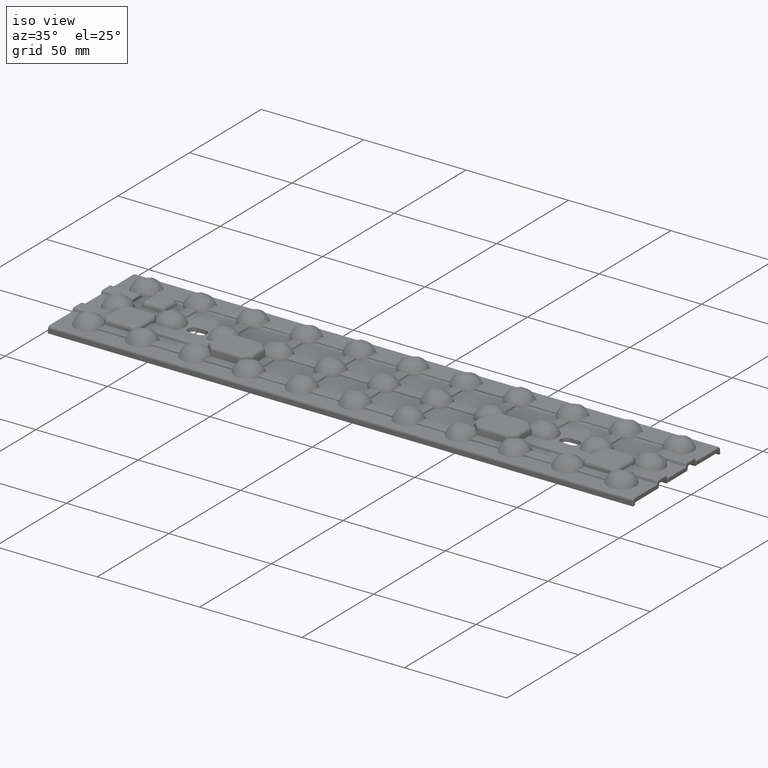
[diagram: clean part render]
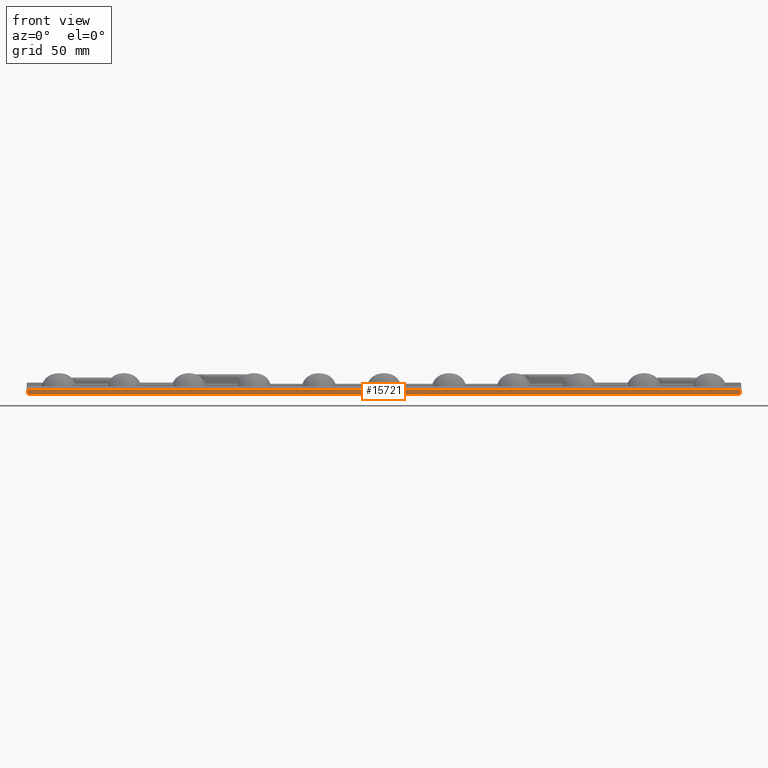
[diagram: tour spotlight — one face highlighted and labeled with its STEP entity id]
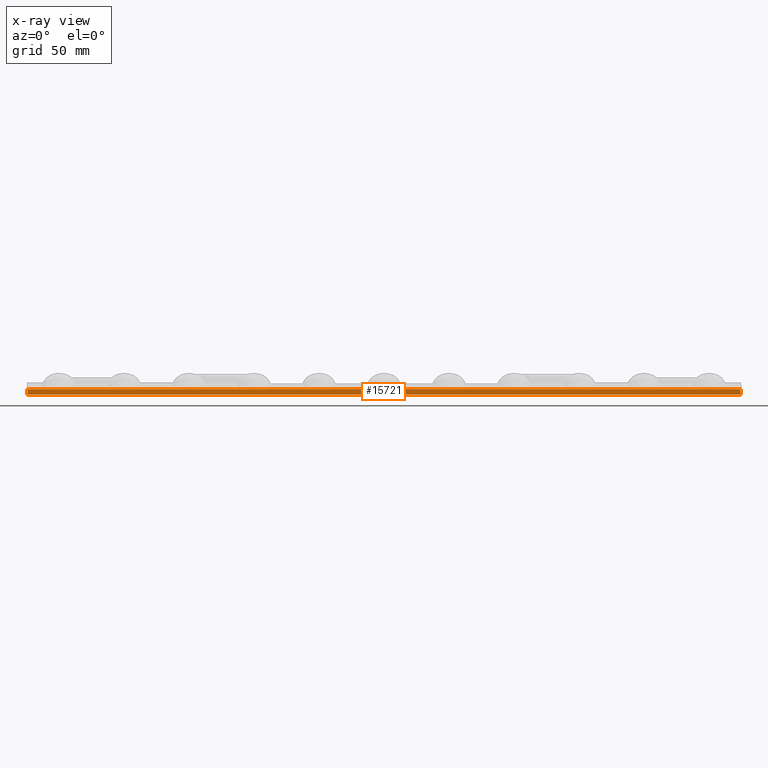
[diagram: x-ray of the same camera — body ghosted, this tour face saturated]
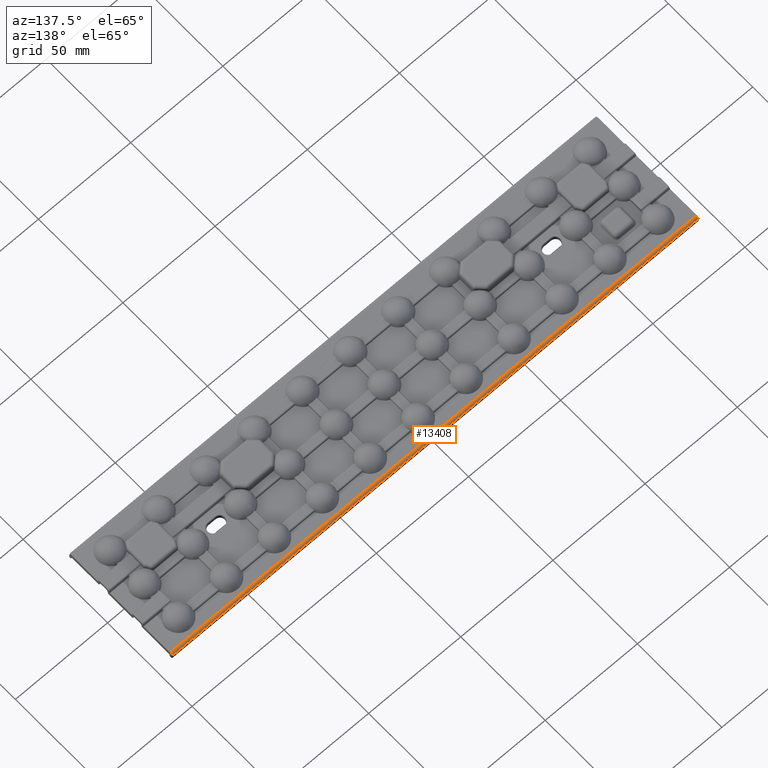
[diagram: tour spotlight — one face highlighted and labeled with its STEP entity id]
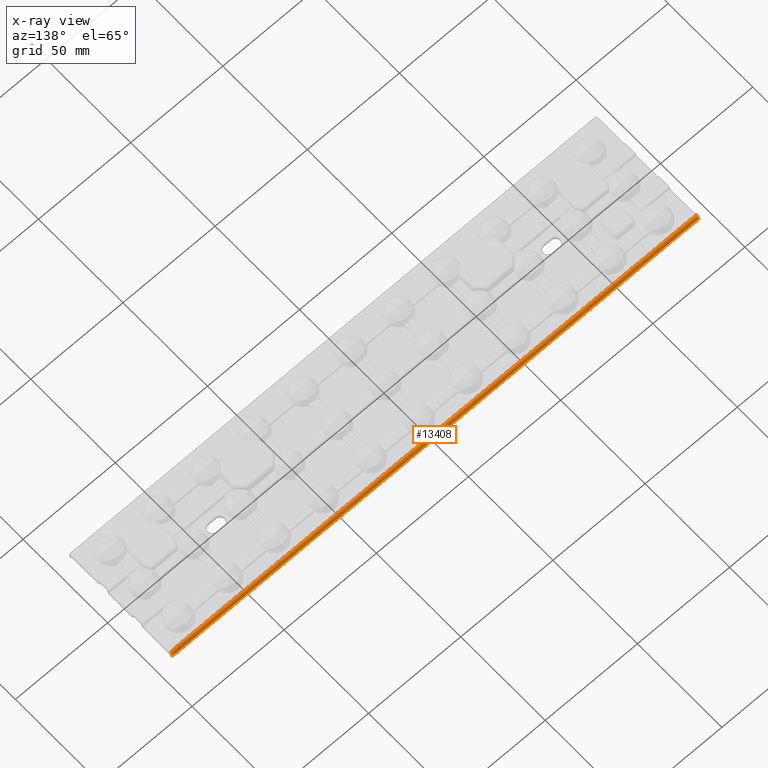
[diagram: x-ray of the same camera — body ghosted, this tour face saturated]
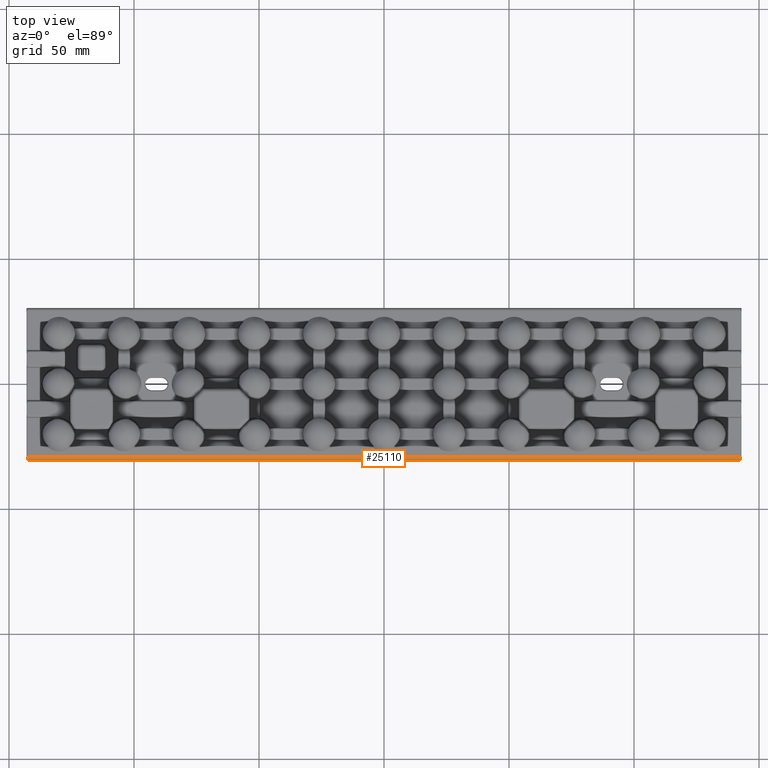
[diagram: tour spotlight — one face highlighted and labeled with its STEP entity id]
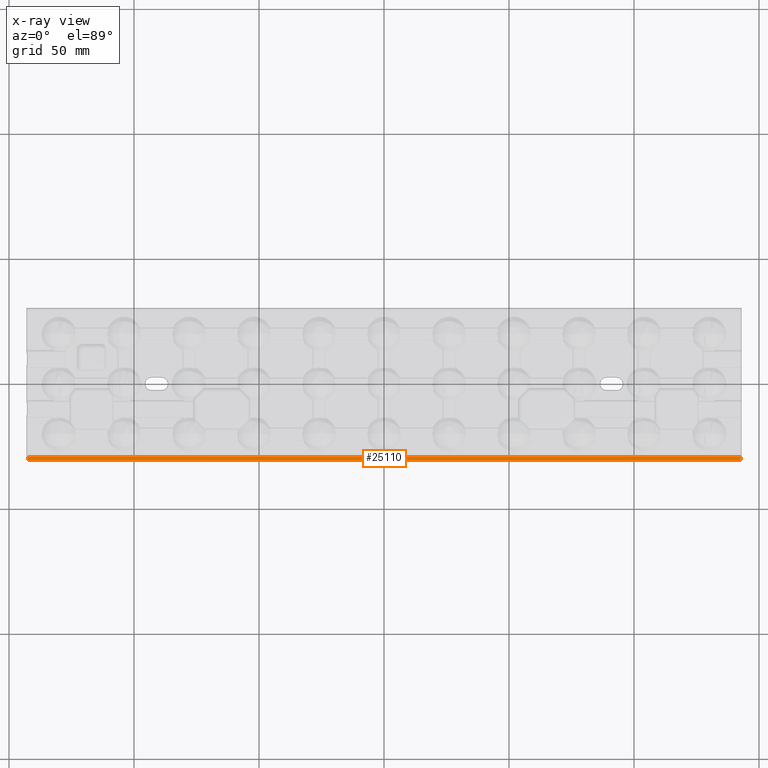
[diagram: x-ray of the same camera — body ghosted, this tour face saturated]
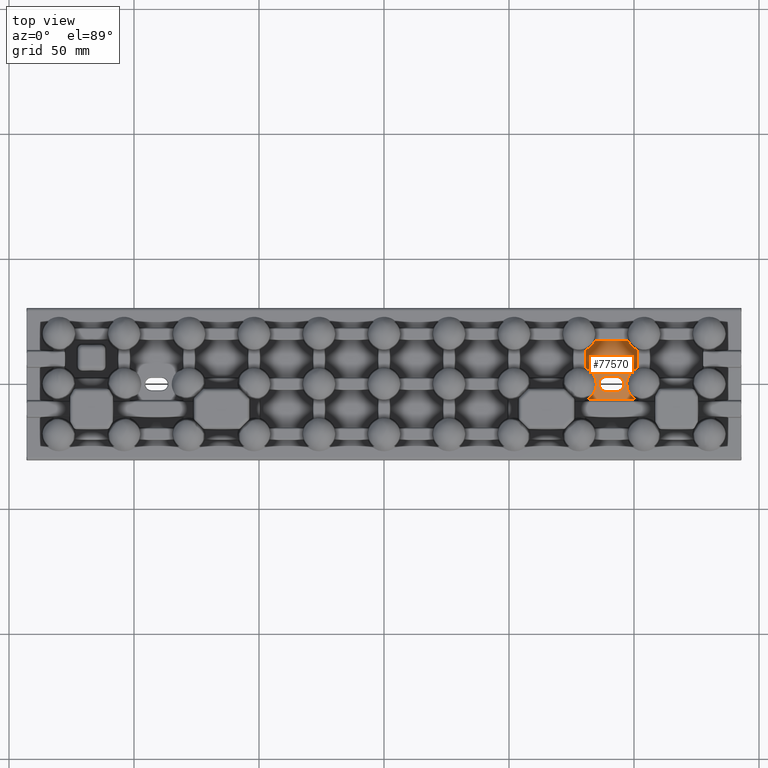
[diagram: tour spotlight — one face highlighted and labeled with its STEP entity id]
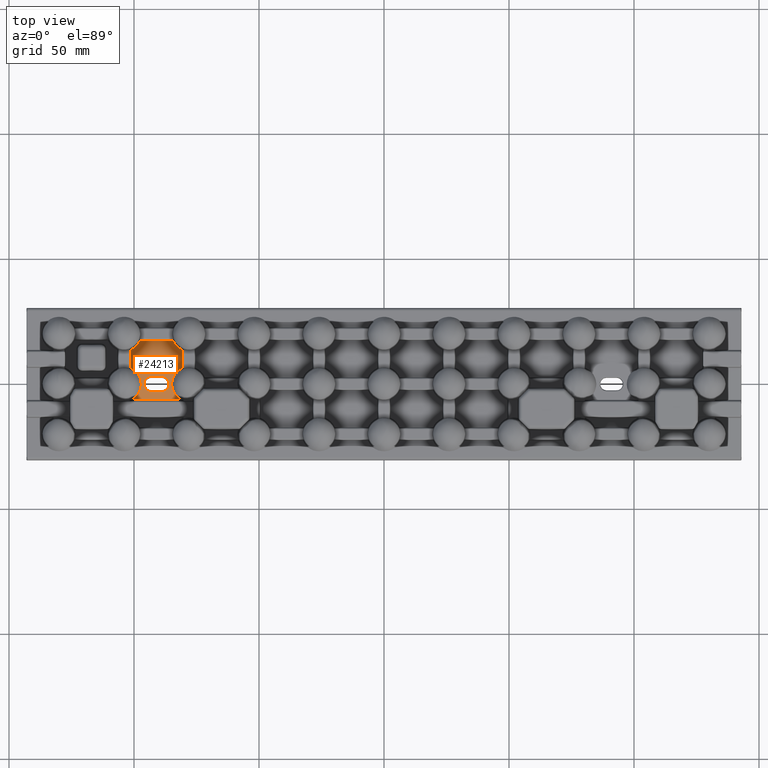
[diagram: tour spotlight — one face highlighted and labeled with its STEP entity id]
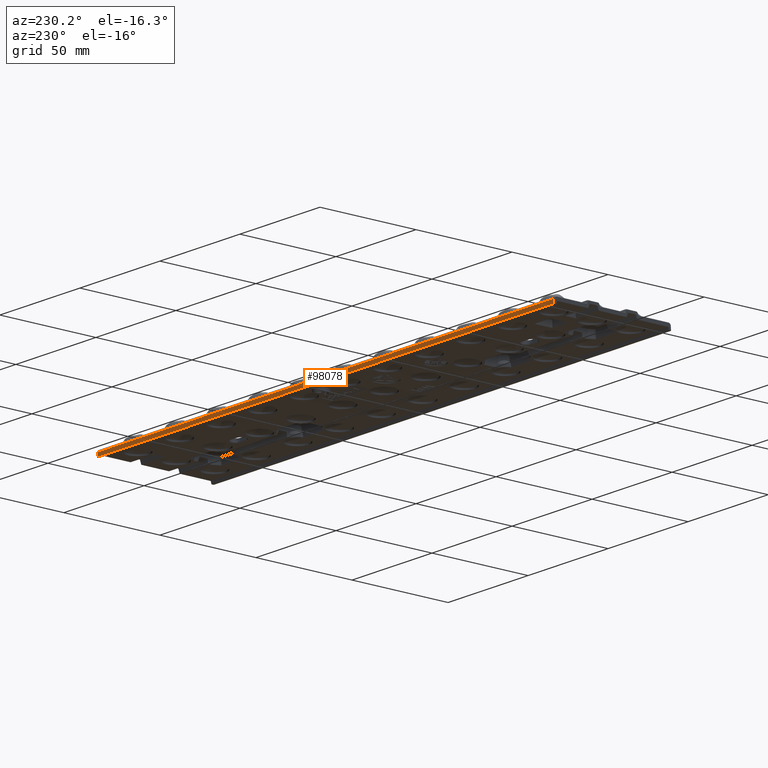
[diagram: tour spotlight — one face highlighted and labeled with its STEP entity id]
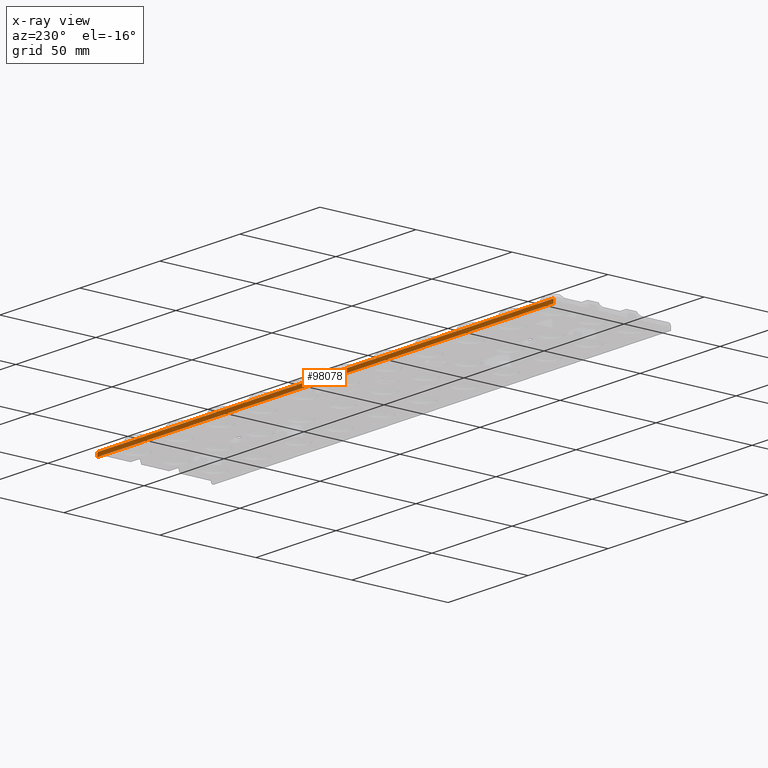
[diagram: x-ray of the same camera — body ghosted, this tour face saturated]
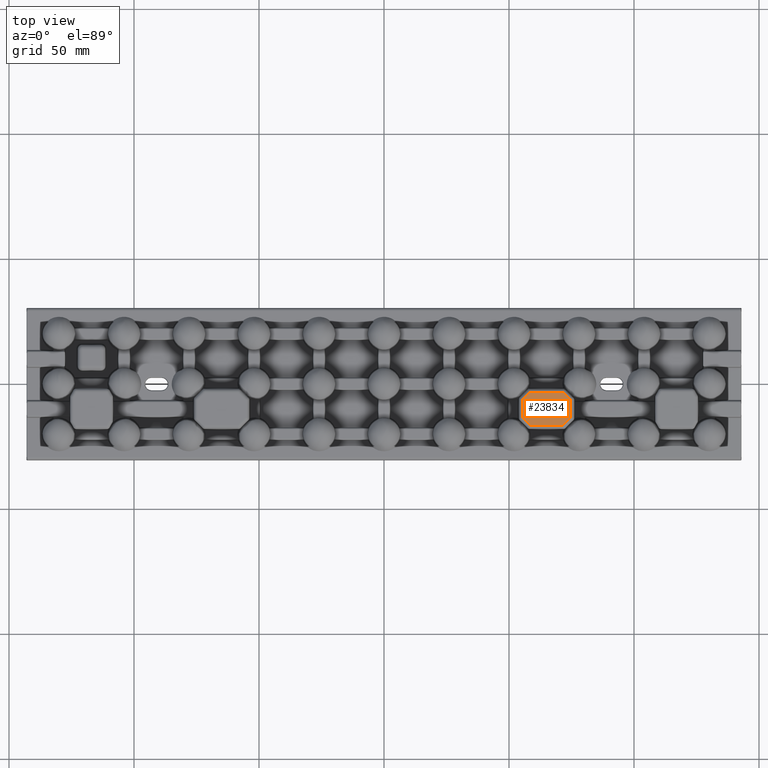
[diagram: tour spotlight — one face highlighted and labeled with its STEP entity id]
A machine part: a face-by-face anatomy tour. The part has 2278 B-rep faces; the first image is the clean iso view, then the 7 largest visible faces are spotlighted one at a time (largest first), each with its STEP entity span.

Face 1 — front view, entity #15721. An x-ray twin of the same camera follows (body ghosted, this face saturated) — the face is partly hidden behind the body. In plain terms, the highlighted planar face has unit normal (0, -0.9994, 0.0349).
Definition (entity closure, byte-faithful):
#867 = DIRECTION ( 'NONE',  ( -1.000000000000000000, 0.0000000000000000000, 0.0000000000000000000 ) ) ;
#1411 = VERTEX_POINT ( 'NONE', #44555 ) ;
#5495 = LINE ( 'NONE', #29570, #69446 ) ;
#11833 = ORIENTED_EDGE ( 'NONE', *, *, #56061, .T. ) ;
#15154 = EDGE_CURVE ( 'NONE', #1411, #95357, #60578, .T. ) ;
#15721 = ADVANCED_FACE ( 'NONE', ( #51438 ), #33324, .T. ) ;
#16043 = AXIS2_PLACEMENT_3D ( 'NONE', #83264, #41715, #100059 ) ;
#22266 = CARTESIAN_POINT ( 'NONE',  ( -142.5271326951346400, -30.42688902594225900, 0.7936243708781265400 ) ) ;
#29570 = CARTESIAN_POINT ( 'NONE',  ( 142.4267714407497700, -30.32652777155741900, 3.667594671233609400 ) ) ;
#31561 = ORIENTED_EDGE ( 'NONE', *, *, #74196, .T. ) ;
#32669 = CARTESIAN_POINT ( 'NONE',  ( -142.4267714407498000, -30.32652777155741900, 3.667594671233610300 ) ) ;
#33324 = PLANE ( 'NONE',  #16043 ) ;
#41715 = DIRECTION ( 'NONE',  ( 0.0000000000000000000, -0.9993908270190957600, 0.03489949670250105200 ) ) ;
#42489 = CARTESIAN_POINT ( 'NONE',  ( 0.0000000000000000000, -30.42688902594225900, 0.7936243708781265400 ) ) ;
#44555 = CARTESIAN_POINT ( 'NONE',  ( 142.6002436691923400, -30.50000000000000400, -1.300000000000000000 ) ) ;
#45925 = EDGE_CURVE ( 'NONE', #93109, #106471, #50000, .T. ) ;
#49284 = CARTESIAN_POINT ( 'NONE',  ( 142.5271326951346400, -30.42688902594225900, 0.7936243708781265400 ) ) ;
#49473 = DIRECTION ( 'NONE',  ( -0.03487826274237469000, -0.03487826274237468300, -0.9987827659587181800 ) ) ;
#49828 = EDGE_LOOP ( 'NONE', ( #71364, #11833, #75666, #31561 ) ) ;
#50000 = LINE ( 'NONE', #42489, #94334 ) ;
#51438 = FACE_OUTER_BOUND ( 'NONE', #49828, .T. ) ;
#53365 = CARTESIAN_POINT ( 'NONE',  ( -142.6002436691923400, -30.50000000000000400, -1.300000000000000000 ) ) ;
#55889 = VECTOR ( 'NONE', #49473, 1000.000000000000100 ) ;
#56061 = EDGE_CURVE ( 'NONE', #1411, #93109, #5495, .T. ) ;
#60578 = LINE ( 'NONE', #61494, #74972 ) ;
#61494 = CARTESIAN_POINT ( 'NONE',  ( 0.0000000000000000000, -30.50000000000000400, -1.300000000000000000 ) ) ;
#69446 = VECTOR ( 'NONE', #79519, 1000.000000000000100 ) ;
#69920 = DIRECTION ( 'NONE',  ( -1.000000000000000000, 0.0000000000000000000, 0.0000000000000000000 ) ) ;
#71364 = ORIENTED_EDGE ( 'NONE', *, *, #15154, .F. ) ;
#74196 = EDGE_CURVE ( 'NONE', #106471, #95357, #80730, .T. ) ;
#74972 = VECTOR ( 'NONE', #69920, 1000.000000000000000 ) ;
#75666 = ORIENTED_EDGE ( 'NONE', *, *, #45925, .T. ) ;
#79519 = DIRECTION ( 'NONE',  ( -0.03487826274237469000, 0.03487826274237468300, 0.9987827659587181800 ) ) ;
#80730 = LINE ( 'NONE', #32669, #55889 ) ;
#83264 = CARTESIAN_POINT ( 'NONE',  ( 0.0000000000000000000, -30.50000000000000400, -1.300000000000000000 ) ) ;
#93109 = VERTEX_POINT ( 'NONE', #49284 ) ;
#94334 = VECTOR ( 'NONE', #867, 1000.000000000000000 ) ;
#95357 = VERTEX_POINT ( 'NONE', #53365 ) ;
#100059 = DIRECTION ( 'NONE',  ( 0.0000000000000000000, -0.03489949670250104600, -0.9993908270190956500 ) ) ;
#106471 = VERTEX_POINT ( 'NONE', #22266 ) ;

Face 2 — auxiliary view, entity #13408. An x-ray twin of the same camera follows (body ghosted, this face saturated) — the face is partly hidden behind the body. In plain terms, the highlighted cylindrical surface (edge-blend (fillet) strip) has radius 1.25 mm, axis along (-1, 0, 0).
Definition (entity closure, byte-faithful):
#117 = DIRECTION ( 'NONE',  ( 0.0000000000000000000, 0.0000000000000000000, 1.000000000000000000 ) ) ;
#6324 = CARTESIAN_POINT ( 'NONE',  ( 142.8847614606772000, 30.42688902594225900, 0.7936243708781263200 ) ) ;
#6431 = VERTEX_POINT ( 'NONE', #96192 ) ;
#7373 = CARTESIAN_POINT ( 'NONE',  ( 142.5102327765253000, 30.40203620445798200, 1.505316061697148600 ) ) ;
#9277 = CARTESIAN_POINT ( 'NONE',  ( -142.4984859507544600, 29.88977599060007900, 2.000000000000000000 ) ) ;
#13408 = ADVANCED_FACE ( 'NONE', ( #59203 ), #37048, .T. ) ;
#14751 = VECTOR ( 'NONE', #39907, 1000.000000000000000 ) ;
#25612 =( BOUNDED_CURVE ( )  B_SPLINE_CURVE ( 3, ( #57322, #107385, #7373, #65699 ),
 .UNSPECIFIED., .F., .T. ) 
 B_SPLINE_CURVE_WITH_KNOTS ( ( 4, 4 ),
 ( 0.0000000000000000000, 1.535889741755009700 ),
 .UNSPECIFIED. ) 
 CURVE ( )  GEOMETRIC_REPRESENTATION_ITEM ( )  RATIONAL_B_SPLINE_CURVE ( ( 1.000000000000000000, 0.8128932002257675000, 0.8128932002257675000, 1.000000000000000000 ) ) 
 REPRESENTATION_ITEM ( '' )  );
#31708 = EDGE_CURVE ( 'NONE', #62277, #97951, #25612, .T. ) ;
#33360 = CARTESIAN_POINT ( 'NONE',  ( 0.0000000000000000000, 29.17765049216839300, 0.7500000000000000000 ) ) ;
#33519 = LINE ( 'NONE', #96049, #72672 ) ;
#36939 = LINE ( 'NONE', #6324, #14751 ) ;
#37048 = CYLINDRICAL_SURFACE ( 'NONE', #78811, 1.250000000000000000 ) ;
#38242 = ORIENTED_EDGE ( 'NONE', *, *, #66885, .F. ) ;
#39907 = DIRECTION ( 'NONE',  ( 1.000000000000000000, -0.0000000000000000000, -0.0000000000000000000 ) ) ;
#42539 = CARTESIAN_POINT ( 'NONE',  ( -142.5102327765253600, 30.40203620445797500, 1.505316061697148800 ) ) ;
#53330 = CARTESIAN_POINT ( 'NONE',  ( -142.4984859507544300, 29.17765049216839300, 2.000000000000000000 ) ) ;
#53452 = EDGE_LOOP ( 'NONE', ( #84493, #85863, #38242, #64288 ) ) ;
#56601 = CARTESIAN_POINT ( 'NONE',  ( 142.5271326951346400, 30.42688902594225900, 0.7936243708781263200 ) ) ;
#57322 = CARTESIAN_POINT ( 'NONE',  ( 142.4984859507544300, 29.17765049216839300, 2.000000000000000000 ) ) ;
#58460 = DIRECTION ( 'NONE',  ( -1.000000000000000000, 0.0000000000000000000, 0.0000000000000000000 ) ) ;
#59203 = FACE_OUTER_BOUND ( 'NONE', #53452, .T. ) ;
#62277 = VERTEX_POINT ( 'NONE', #92006 ) ;
#64288 = ORIENTED_EDGE ( 'NONE', *, *, #72643, .T. ) ;
#65558 = EDGE_CURVE ( 'NONE', #62277, #100229, #33519, .T. ) ;
#65699 = CARTESIAN_POINT ( 'NONE',  ( 142.5271326951346400, 30.42688902594225900, 0.7936243708781263200 ) ) ;
#66885 = EDGE_CURVE ( 'NONE', #6431, #97951, #36939, .T. ) ;
#67660 = CARTESIAN_POINT ( 'NONE',  ( -142.4984859507544300, 29.17765049216839300, 2.000000000000000000 ) ) ;
#72643 = EDGE_CURVE ( 'NONE', #6431, #100229, #82928, .T. ) ;
#72672 = VECTOR ( 'NONE', #104492, 1000.000000000000000 ) ;
#78811 = AXIS2_PLACEMENT_3D ( 'NONE', #33360, #58460, #117 ) ;
#82928 =( BOUNDED_CURVE ( )  B_SPLINE_CURVE ( 3, ( #100902, #42539, #9277, #67660 ),
 .UNSPECIFIED., .F., .F. ) 
 B_SPLINE_CURVE_WITH_KNOTS ( ( 4, 4 ),
 ( 1.605702911834784100, 3.141592653589793100 ),
 .UNSPECIFIED. ) 
 CURVE ( )  GEOMETRIC_REPRESENTATION_ITEM ( )  RATIONAL_B_SPLINE_CURVE ( ( 1.000000000000000000, 0.8128932002257676100, 0.8128932002257676100, 1.000000000000000000 ) ) 
 REPRESENTATION_ITEM ( '' )  );
#84493 = ORIENTED_EDGE ( 'NONE', *, *, #65558, .F. ) ;
#85863 = ORIENTED_EDGE ( 'NONE', *, *, #31708, .T. ) ;
#92006 = CARTESIAN_POINT ( 'NONE',  ( 142.4984859507544300, 29.17765049216839300, 2.000000000000000000 ) ) ;
#96049 = CARTESIAN_POINT ( 'NONE',  ( -142.8847614606772000, 29.17765049216839300, 2.000000000000000000 ) ) ;
#96192 = CARTESIAN_POINT ( 'NONE',  ( -142.5271326951346100, 30.42688902594225900, 0.7936243708781263200 ) ) ;
#97951 = VERTEX_POINT ( 'NONE', #56601 ) ;
#100229 = VERTEX_POINT ( 'NONE', #53330 ) ;
#100902 = CARTESIAN_POINT ( 'NONE',  ( -142.5271326951346100, 30.42688902594225900, 0.7936243708781263200 ) ) ;
#104492 = DIRECTION ( 'NONE',  ( -1.000000000000000000, 0.0000000000000000000, -0.0000000000000000000 ) ) ;
#107385 = CARTESIAN_POINT ( 'NONE',  ( 142.4984859507544300, 29.88977599060007200, 2.000000000000000000 ) ) ;

Face 3 — top view, entity #25110. An x-ray twin of the same camera follows (body ghosted, this face saturated) — the face is partly hidden behind the body. In plain terms, the highlighted cylindrical surface (edge-blend (fillet) strip) has radius 1.25 mm, axis along (-1, 0, 0).
Definition (entity closure, byte-faithful):
#867 = DIRECTION ( 'NONE',  ( -1.000000000000000000, 0.0000000000000000000, 0.0000000000000000000 ) ) ;
#943 = EDGE_LOOP ( 'NONE', ( #27905, #92797, #25342, #14363 ) ) ;
#5397 = CARTESIAN_POINT ( 'NONE',  ( 0.0000000000000000000, -29.17765049216839300, 0.7500000000000002200 ) ) ;
#8914 = DIRECTION ( 'NONE',  ( 1.000000000000000000, -0.0000000000000000000, 0.0000000000000000000 ) ) ;
#14363 = ORIENTED_EDGE ( 'NONE', *, *, #100554, .T. ) ;
#19468 = CARTESIAN_POINT ( 'NONE',  ( 142.5102327765253000, -30.40203620445798200, 1.505316061697148400 ) ) ;
#19589 = VERTEX_POINT ( 'NONE', #63115 ) ;
#22266 = CARTESIAN_POINT ( 'NONE',  ( -142.5271326951346400, -30.42688902594225900, 0.7936243708781265400 ) ) ;
#22751 = VECTOR ( 'NONE', #8914, 1000.000000000000000 ) ;
#25110 = ADVANCED_FACE ( 'NONE', ( #71356 ), #43926, .T. ) ;
#25342 = ORIENTED_EDGE ( 'NONE', *, *, #30907, .F. ) ;
#27905 = ORIENTED_EDGE ( 'NONE', *, *, #45925, .F. ) ;
#28700 =( BOUNDED_CURVE ( )  B_SPLINE_CURVE ( 3, ( #61329, #19468, #44615, #69758 ),
 .UNSPECIFIED., .F., .F. ) 
 B_SPLINE_CURVE_WITH_KNOTS ( ( 4, 4 ),
 ( 4.747295565424576800, 6.283185307179586200 ),
 .UNSPECIFIED. ) 
 CURVE ( )  GEOMETRIC_REPRESENTATION_ITEM ( )  RATIONAL_B_SPLINE_CURVE ( ( 1.000000000000000000, 0.8128932002257675000, 0.8128932002257675000, 1.000000000000000000 ) ) 
 REPRESENTATION_ITEM ( '' )  );
#30907 = EDGE_CURVE ( 'NONE', #19589, #104504, #89243, .T. ) ;
#35348 = CARTESIAN_POINT ( 'NONE',  ( -142.4984859507544300, -29.88977599060007200, 2.000000000000000000 ) ) ;
#36072 =( BOUNDED_CURVE ( )  B_SPLINE_CURVE ( 3, ( #76915, #35348, #93688, #43730 ),
 .UNSPECIFIED., .F., .F. ) 
 B_SPLINE_CURVE_WITH_KNOTS ( ( 4, 4 ),
 ( 3.141592653589793100, 4.677482395344802600 ),
 .UNSPECIFIED. ) 
 CURVE ( )  GEOMETRIC_REPRESENTATION_ITEM ( )  RATIONAL_B_SPLINE_CURVE ( ( 1.000000000000000000, 0.8128932002257675000, 0.8128932002257675000, 1.000000000000000000 ) ) 
 REPRESENTATION_ITEM ( '' )  );
#36605 = CARTESIAN_POINT ( 'NONE',  ( 142.4984859507544300, -29.17765049216839300, 2.000000000000000000 ) ) ;
#42489 = CARTESIAN_POINT ( 'NONE',  ( 0.0000000000000000000, -30.42688902594225900, 0.7936243708781265400 ) ) ;
#43730 = CARTESIAN_POINT ( 'NONE',  ( -142.5271326951346400, -30.42688902594225900, 0.7936243708781265400 ) ) ;
#43926 = CYLINDRICAL_SURFACE ( 'NONE', #75595, 1.249999999999999800 ) ;
#44615 = CARTESIAN_POINT ( 'NONE',  ( 142.4984859507544300, -29.88977599060007200, 2.000000000000000000 ) ) ;
#45925 = EDGE_CURVE ( 'NONE', #93109, #106471, #50000, .T. ) ;
#49284 = CARTESIAN_POINT ( 'NONE',  ( 142.5271326951346400, -30.42688902594225900, 0.7936243708781265400 ) ) ;
#50000 = LINE ( 'NONE', #42489, #94334 ) ;
#55379 = DIRECTION ( 'NONE',  ( 0.0000000000000000000, 0.0000000000000000000, 1.000000000000000000 ) ) ;
#61329 = CARTESIAN_POINT ( 'NONE',  ( 142.5271326951346400, -30.42688902594225900, 0.7936243708781265400 ) ) ;
#63115 = CARTESIAN_POINT ( 'NONE',  ( -142.4984859507544300, -29.17765049216839300, 2.000000000000000000 ) ) ;
#69758 = CARTESIAN_POINT ( 'NONE',  ( 142.4984859507544300, -29.17765049216839300, 2.000000000000000000 ) ) ;
#71356 = FACE_OUTER_BOUND ( 'NONE', #943, .T. ) ;
#72201 = DIRECTION ( 'NONE',  ( -1.000000000000000000, 0.0000000000000000000, 0.0000000000000000000 ) ) ;
#75139 = EDGE_CURVE ( 'NONE', #93109, #104504, #28700, .T. ) ;
#75595 = AXIS2_PLACEMENT_3D ( 'NONE', #5397, #72201, #55379 ) ;
#75711 = CARTESIAN_POINT ( 'NONE',  ( 0.0000000000000000000, -29.17765049216839300, 2.000000000000000000 ) ) ;
#76915 = CARTESIAN_POINT ( 'NONE',  ( -142.4984859507544300, -29.17765049216839300, 2.000000000000000000 ) ) ;
#89243 = LINE ( 'NONE', #75711, #22751 ) ;
#92797 = ORIENTED_EDGE ( 'NONE', *, *, #75139, .T. ) ;
#93109 = VERTEX_POINT ( 'NONE', #49284 ) ;
#93688 = CARTESIAN_POINT ( 'NONE',  ( -142.5102327765253000, -30.40203620445798200, 1.505316061697149000 ) ) ;
#94334 = VECTOR ( 'NONE', #867, 1000.000000000000000 ) ;
#100554 = EDGE_CURVE ( 'NONE', #19589, #106471, #36072, .T. ) ;
#104504 = VERTEX_POINT ( 'NONE', #36605 ) ;
#106471 = VERTEX_POINT ( 'NONE', #22266 ) ;

Face 4 — top view, entity #77570. In plain terms, the highlighted planar face has unit normal (-0, 0, 1).
Definition (entity closure, byte-faithful):
#123 = CARTESIAN_POINT ( 'NONE',  ( 84.85880846757440600, -0.6784873659192948200, 2.000000000000000000 ) ) ;
#267 = LINE ( 'NONE', #33132, #19882 ) ;
#472 = CARTESIAN_POINT ( 'NONE',  ( 83.90134216121593600, 3.587481237606911400, 2.000000000000000000 ) ) ;
#1595 = CARTESIAN_POINT ( 'NONE',  ( 80.74142219370166600, 13.65461408883049200, 2.000000000000000000 ) ) ;
#2251 = CARTESIAN_POINT ( 'NONE',  ( 97.26953056111534600, 1.451397997151463400, 2.000000000000001300 ) ) ;
#2596 = CARTESIAN_POINT ( 'NONE',  ( 97.80898062227835500, -3.039420832587189200, 2.000000000000000000 ) ) ;
#3896 = CARTESIAN_POINT ( 'NONE',  ( 83.19091564862309000, 15.41088227299898600, 2.000000000000000900 ) ) ;
#4932 = EDGE_LOOP ( 'NONE', ( #35397, #24705, #49033, #34690, #38582 ) ) ;
#5570 = EDGE_CURVE ( 'NONE', #80972, #107740, #82188, .T. ) ;
#5646 = CARTESIAN_POINT ( 'NONE',  ( 100.8559505659828100, 13.82559725765202100, 2.000000000000004000 ) ) ;
#6604 = EDGE_CURVE ( 'NONE', #107740, #52000, #84652, .T. ) ;
#6929 = CARTESIAN_POINT ( 'NONE',  ( 81.00095118783556800, -6.228681456733721000, 2.000000000000000000 ) ) ;
#8157 = CARTESIAN_POINT ( 'NONE',  ( 81.00095118783556800, -6.228681456733721000, 2.000000000000000000 ) ) ;
#8501 = CARTESIAN_POINT ( 'NONE',  ( 84.90437484633504500, -0.1846642447523865500, 1.999999999999849900 ) ) ;
#8851 = CARTESIAN_POINT ( 'NONE',  ( 82.93192931718952800, 4.897164041664950700, 2.000000000000015100 ) ) ;
#10583 = CARTESIAN_POINT ( 'NONE',  ( 97.15723218805995000, 0.8000927435939699800, 2.000000000000004900 ) ) ;
#10767 = EDGE_CURVE ( 'NONE', #39942, #84266, #28169, .T. ) ;
#10948 = CARTESIAN_POINT ( 'NONE',  ( 98.46332129672175900, -4.184073841971156500, 2.000000000000000000 ) ) ;
#11712 = CIRCLE ( 'NONE', #14089, 3.012859658342081900 ) ;
#12264 = CARTESIAN_POINT ( 'NONE',  ( 83.93992578677176700, 16.46722731720755900, 2.000000000000001300 ) ) ;
#13690 = CARTESIAN_POINT ( 'NONE',  ( 97.68403363611622600, 17.25857780629792200, 2.000000000000000000 ) ) ;
#14089 = AXIS2_PLACEMENT_3D ( 'NONE', #82798, #32861, #91185 ) ;
#14365 = CARTESIAN_POINT ( 'NONE',  ( 88.99999999999990100, -1.836970198721029200E-015, 2.000000000000000000 ) ) ;
#14596 = ORIENTED_EDGE ( 'NONE', *, *, #29022, .F. ) ;
#16038 = VERTEX_POINT ( 'NONE', #105113 ) ;
#16395 = EDGE_CURVE ( 'NONE', #39942, #57733, #81604, .T. ) ;
#16589 = CARTESIAN_POINT ( 'NONE',  ( 83.10493141831533100, -4.676746082961706500, 1.999999999999999100 ) ) ;
#16940 = CARTESIAN_POINT ( 'NONE',  ( 84.89694862774939600, 0.3112665111190710500, 2.000000000000001800 ) ) ;
#17004 = AXIS2_PLACEMENT_3D ( 'NONE', #35976, #94332, #44370 ) ;
#17296 = CARTESIAN_POINT ( 'NONE',  ( 81.90032516286795800, 5.723564915768908400, 2.000000000000000400 ) ) ;
#18712 = CARTESIAN_POINT ( 'NONE',  ( 99.32967912270488900, 5.115504501146521200, 1.999999999999998200 ) ) ;
#19073 = CARTESIAN_POINT ( 'NONE',  ( 97.10271547800945800, 0.3070987055725276600, 1.999999999999999600 ) ) ;
#19419 = CARTESIAN_POINT ( 'NONE',  ( 99.60407217977510200, -5.353792547182820300, 2.000000000000376100 ) ) ;
#19723 = EDGE_CURVE ( 'NONE', #52000, #16038, #11712, .T. ) ;
#19882 = VECTOR ( 'NONE', #91819, 1000.000000000000000 ) ;
#20732 = CARTESIAN_POINT ( 'NONE',  ( 84.31596631669928900, 17.25857780629792200, 2.000000000000000000 ) ) ;
#21199 = VECTOR ( 'NONE', #99882, 1000.000000000000000 ) ;
#21826 = ORIENTED_EDGE ( 'NONE', *, *, #96817, .T. ) ;
#22813 = DIRECTION ( 'NONE',  ( 1.000000000000000000, 0.0000000000000000000, 0.0000000000000000000 ) ) ;
#24705 = ORIENTED_EDGE ( 'NONE', *, *, #73029, .T. ) ;
#24980 = CARTESIAN_POINT ( 'NONE',  ( 83.70501906340778900, -3.901573889254027300, 2.000000000000000400 ) ) ;
#25320 = CARTESIAN_POINT ( 'NONE',  ( 84.84219297916772000, 0.8041829835066055500, 1.999999999999992200 ) ) ;
#25681 = CARTESIAN_POINT ( 'NONE',  ( 81.04658963285071100, 6.215790835824499500, 1.999999999999999600 ) ) ;
#26144 = VERTEX_POINT ( 'NONE', #100054 ) ;
#27074 = CARTESIAN_POINT ( 'NONE',  ( 98.65645114664680200, 4.396379568371390400, 2.000000000000000900 ) ) ;
#27434 = CARTESIAN_POINT ( 'NONE',  ( 97.09584914820443700, -0.1886949700776585400, 1.999999999999568600 ) ) ;
#27797 = CARTESIAN_POINT ( 'NONE',  ( 100.4133892632446200, -5.923789928633183900, 2.000000000000001300 ) ) ;
#28169 = LINE ( 'NONE', #96831, #94726 ) ;
#28732 = CARTESIAN_POINT ( 'NONE',  ( 81.52410826318114800, 14.03245567687073200, 2.000000000000001800 ) ) ;
#29022 = EDGE_CURVE ( 'NONE', #75069, #84302, #65116, .T. ) ;
#30504 = CARTESIAN_POINT ( 'NONE',  ( 98.41397382994998100, 15.93268726301598200, 2.000000000000001300 ) ) ;
#32861 = DIRECTION ( 'NONE',  ( 0.0000000000000000000, -0.0000000000000000000, -1.000000000000000000 ) ) ;
#32949 = VERTEX_POINT ( 'NONE', #36149 ) ;
#33009 = CARTESIAN_POINT ( 'NONE',  ( 82.14359509171339400, -5.581653984338917200, 1.999999999999996700 ) ) ;
#33132 = CARTESIAN_POINT ( 'NONE',  ( 88.99999999999990100, -3.012859658342088600, 2.000000000000000000 ) ) ;
#33152 = DIRECTION ( 'NONE',  ( -1.000000000000000000, 0.0000000000000000000, 0.0000000000000000000 ) ) ;
#33370 = CARTESIAN_POINT ( 'NONE',  ( 84.19041054358936500, -3.040851692189653100, 2.000000000000000400 ) ) ;
#33505 = CARTESIAN_POINT ( 'NONE',  ( 0.0000000000000000000, -6.228681456733721000, 2.000000000000000000 ) ) ;
#33573 = EDGE_CURVE ( 'NONE', #16038, #32949, #267, .T. ) ;
#33743 = CARTESIAN_POINT ( 'NONE',  ( 84.72962779790320600, 1.455124981100878200, 2.000000000000001300 ) ) ;
#34690 = ORIENTED_EDGE ( 'NONE', *, *, #6604, .T. ) ;
#35397 = ORIENTED_EDGE ( 'NONE', *, *, #33573, .T. ) ;
#35471 = CARTESIAN_POINT ( 'NONE',  ( 98.09942936147933800, 3.588795424829011300, 1.999999999999999600 ) ) ;
#35823 = CARTESIAN_POINT ( 'NONE',  ( 97.14167842618098800, -0.6823766028475675100, 2.000000000000002200 ) ) ;
#35976 = CARTESIAN_POINT ( 'NONE',  ( 92.99999999999990100, -1.592040838891558300E-015, 2.000000000000000000 ) ) ;
#36149 = CARTESIAN_POINT ( 'NONE',  ( 88.99999999999990100, -3.012859658342088600, 2.000000000000000000 ) ) ;
#36187 = CARTESIAN_POINT ( 'NONE',  ( 100.9990487376199200, -6.228681456733721000, 2.000000000000000000 ) ) ;
#37119 = CARTESIAN_POINT ( 'NONE',  ( 80.74142219370166600, 13.65461408883049200, 2.000000000000000000 ) ) ;
#37794 = VECTOR ( 'NONE', #99371, 1000.000000000000000 ) ;
#38582 = ORIENTED_EDGE ( 'NONE', *, *, #19723, .T. ) ;
#38682 = CARTESIAN_POINT ( 'NONE',  ( 101.2585778062981300, 6.345385939632627100, 2.000000000000000000 ) ) ;
#38899 = CARTESIAN_POINT ( 'NONE',  ( 98.81581587538963200, 15.41981666438222500, 2.000000000000313500 ) ) ;
#38969 = LINE ( 'NONE', #99176, #61081 ) ;
#39251 = VERTEX_POINT ( 'NONE', #38682 ) ;
#39942 = VERTEX_POINT ( 'NONE', #1595 ) ;
#41422 = CARTESIAN_POINT ( 'NONE',  ( 101.2585778062981300, 6.345385939632627100, 2.000000000000000000 ) ) ;
#41759 = CARTESIAN_POINT ( 'NONE',  ( 84.55003294028597300, -2.124793140347135600, 2.000000000000000000 ) ) ;
#42111 = CARTESIAN_POINT ( 'NONE',  ( 84.45805969002879000, 2.396682763492896200, 2.000000000000000400 ) ) ;
#42273 = B_SPLINE_CURVE_WITH_KNOTS ( 'NONE', 3,
 ( #41422, #91357, #68622, #18712, #77042, #27074, #85393, #35471, #93813, #43857, #102214, #52256, #2251, #60568, #10583, #68988, #19073, #77380, #27434, #85757, #35823, #94181, #44216, #102585, #52609, #2596, #60938, #10948, #69344, #19419, #77758, #27797, #86116, #36187 ),
 .UNSPECIFIED., .F., .F.,
 ( 4, 2, 2, 2, 2, 2, 2, 2, 2, 2, 2, 2, 2, 2, 2, 2, 4 ),
 ( 1.453963218420191700E-017, 0.001960818837448628700, 0.002941228256172951900, 0.003921637674897275600, 0.004902047093621596200, 0.005882456512345916900, 0.006862865931070237500, 0.007353070640432398700, 0.007843275349794558100, 0.008333480059156718500, 0.008823684768518878800, 0.009804094187243202900, 0.01078450360596752400, 0.01176491302469184600, 0.01372573186214049400, 0.01470614128086480300, 0.01568655069958910900 ),
 .UNSPECIFIED. ) ;
#43857 = CARTESIAN_POINT ( 'NONE',  ( 97.65966732484484700, 2.702534925245658700, 1.999999999999999600 ) ) ;
#44216 = CARTESIAN_POINT ( 'NONE',  ( 97.27933983055471900, -1.495855070239778800, 2.000000000000000400 ) ) ;
#44370 = DIRECTION ( 'NONE',  ( 1.000000000000000000, 0.0000000000000000000, 0.0000000000000000000 ) ) ;
#45513 = CARTESIAN_POINT ( 'NONE',  ( 82.23483343402436700, 14.52388461563274500, 1.999999999999997300 ) ) ;
#46566 = AXIS2_PLACEMENT_3D ( 'NONE', #47823, #106178, #56146 ) ;
#46888 = DIRECTION ( 'NONE',  ( 9.251858538542944200E-016, -1.000000000000000000, 0.0000000000000000000 ) ) ;
#47297 = CARTESIAN_POINT ( 'NONE',  ( 99.42064771702588600, 14.79424882064621900, 2.000000000000266500 ) ) ;
#47823 = CARTESIAN_POINT ( 'NONE',  ( 0.0000000000000000000, 0.0000000000000000000, 2.000000000000000000 ) ) ;
#49033 = ORIENTED_EDGE ( 'NONE', *, *, #5570, .T. ) ;
#49945 = EDGE_LOOP ( 'NONE', ( #87725, #75768, #14596, #77967, #84904, #93515, #67023, #21826 ) ) ;
#50155 = CARTESIAN_POINT ( 'NONE',  ( 84.78775370749237100, -1.169157725827631600, 2.000000000000000400 ) ) ;
#50336 = EDGE_CURVE ( 'NONE', #80456, #84266, #59619, .T. ) ;
#50522 = CARTESIAN_POINT ( 'NONE',  ( 84.06314609252713400, 3.295858998927742700, 1.999999999999999100 ) ) ;
#51384 = EDGE_CURVE ( 'NONE', #39251, #26144, #42273, .T. ) ;
#52000 = VERTEX_POINT ( 'NONE', #74286 ) ;
#52256 = CARTESIAN_POINT ( 'NONE',  ( 97.34717965111028100, 1.772043510329875700, 2.000000000000005300 ) ) ;
#52609 = CARTESIAN_POINT ( 'NONE',  ( 97.55589560734684100, -2.435819102258976800, 1.999999999999999600 ) ) ;
#53912 = CARTESIAN_POINT ( 'NONE',  ( 82.73268806211733300, 14.94879729116226700, 1.999999999999999600 ) ) ;
#55638 = CARTESIAN_POINT ( 'NONE',  ( 100.4697173812430700, 14.03603478032696300, 2.000000000000000000 ) ) ;
#56146 = DIRECTION ( 'NONE',  ( 1.000000000000000000, 0.0000000000000000000, 0.0000000000000000000 ) ) ;
#57733 = VERTEX_POINT ( 'NONE', #65195 ) ;
#58110 = CARTESIAN_POINT ( 'NONE',  ( 81.59946045947204100, -5.944314686877938800, 2.000000000000000000 ) ) ;
#58471 = CARTESIAN_POINT ( 'NONE',  ( 84.87788818873748700, -0.5143006574739815700, 1.999999999999850800 ) ) ;
#58827 = CARTESIAN_POINT ( 'NONE',  ( 83.36309870345729700, 4.409802029642214900, 2.000000000000000000 ) ) ;
#59619 = B_SPLINE_CURVE_WITH_KNOTS ( 'NONE', 3,
 ( #8157, #58110, #33009, #66505, #16589, #74933, #24980, #83307, #33370, #91696, #41759, #100112, #50155, #123, #58471, #8501, #66867, #16940, #75286, #25320, #83660, #33743, #92057, #42111, #100469, #50522, #472, #58827, #8851, #67229, #17296, #75640, #25681, #84023 ),
 .UNSPECIFIED., .F., .F.,
 ( 4, 2, 2, 2, 2, 2, 2, 2, 2, 2, 2, 2, 2, 2, 2, 2, 4 ),
 ( 0.0000000000000000000, 0.001961386722234106600, 0.002942080083351159900, 0.003922773444468213200, 0.004903466805585266500, 0.005884160166702319700, 0.006864853527819373000, 0.007355200208377896600, 0.007845546888936421100, 0.008335893569494944700, 0.008826240250053466600, 0.009806933611170515600, 0.01078762697228756300, 0.01176832033340461200, 0.01372970705563873000, 0.01471040041675580500, 0.01569109377787288000 ),
 .UNSPECIFIED. ) ;
#60568 = CARTESIAN_POINT ( 'NONE',  ( 97.18172668172370300, 0.9635377148070370900, 2.000000000000001300 ) ) ;
#60774 = FACE_OUTER_BOUND ( 'NONE', #49945, .T. ) ;
#60938 = CARTESIAN_POINT ( 'NONE',  ( 97.95812373153152900, -3.336567953892040100, 2.000000000000000000 ) ) ;
#61081 = VECTOR ( 'NONE', #33152, 1000.000000000000000 ) ;
#62235 = CARTESIAN_POINT ( 'NONE',  ( 83.46207193200719100, 15.74603682573988700, 2.000000000000001300 ) ) ;
#63661 = CARTESIAN_POINT ( 'NONE',  ( 97.85337189919933100, 16.85535792656597900, 2.000000000000000400 ) ) ;
#63802 = AXIS2_PLACEMENT_3D ( 'NONE', #14365, #72759, #22813 ) ;
#64007 = CARTESIAN_POINT ( 'NONE',  ( 101.2585778062981300, 13.65461406036731900, 2.000000000000000000 ) ) ;
#65116 = B_SPLINE_CURVE_WITH_KNOTS ( 'NONE', 3,
 ( #13690, #63661, #80473, #30504, #88814, #38899, #97229, #47297, #105659, #55638, #5646, #64007 ),
 .UNSPECIFIED., .F., .F.,
 ( 4, 2, 2, 2, 2, 4 ),
 ( 3.469446951953614200E-018, 0.001295481799448412700, 0.001943222699172612700, 0.002590963598896813200, 0.003886445398345188100, 0.005181927197793563000 ),
 .UNSPECIFIED. ) ;
#65195 = CARTESIAN_POINT ( 'NONE',  ( 84.31596631669928900, 17.25857780629792200, 2.000000000000000000 ) ) ;
#65418 = CARTESIAN_POINT ( 'NONE',  ( -3.266548986968408800E-016, 3.012859658342074800, 2.000000000000000000 ) ) ;
#66505 = CARTESIAN_POINT ( 'NONE',  ( 82.87657942568253600, -4.917838056805901000, 1.999999999999996700 ) ) ;
#66867 = CARTESIAN_POINT ( 'NONE',  ( 84.91072977066120600, -0.01913505243419678600, 2.000000000000001300 ) ) ;
#67023 = ORIENTED_EDGE ( 'NONE', *, *, #50336, .F. ) ;
#67229 = CARTESIAN_POINT ( 'NONE',  ( 82.17000788326491500, 5.531329725487064600, 2.000000000000014700 ) ) ;
#68622 = CARTESIAN_POINT ( 'NONE',  ( 100.0903348142550000, 5.746798815340266500, 1.999999999999997800 ) ) ;
#68988 = CARTESIAN_POINT ( 'NONE',  ( 97.11807004260815300, 0.4718083678504909100, 2.000000000000005800 ) ) ;
#69344 = CARTESIAN_POINT ( 'NONE',  ( 98.87308768328543400, -4.689778383401296000, 2.000000000000375700 ) ) ;
#70678 = CARTESIAN_POINT ( 'NONE',  ( 84.14664001452689500, 16.85538642735481200, 2.000000000000001800 ) ) ;
#71295 = VECTOR ( 'NONE', #78839, 1000.000000000000000 ) ;
#72759 = DIRECTION ( 'NONE',  ( 0.0000000000000000000, -0.0000000000000000000, -1.000000000000000000 ) ) ;
#73029 = EDGE_CURVE ( 'NONE', #32949, #80972, #97772, .T. ) ;
#73919 = LINE ( 'NONE', #103655, #71295 ) ;
#74086 = EDGE_CURVE ( 'NONE', #75069, #57733, #38969, .T. ) ;
#74286 = CARTESIAN_POINT ( 'NONE',  ( 96.01285965834198100, -1.592040838891558300E-015, 2.000000000000000000 ) ) ;
#74933 = CARTESIAN_POINT ( 'NONE',  ( 83.51802329667613400, -4.169396280616739500, 1.999999999999999100 ) ) ;
#74974 = CARTESIAN_POINT ( 'NONE',  ( 92.99999999999990100, 3.012859658342085000, 2.000000000000000000 ) ) ;
#75069 = VERTEX_POINT ( 'NONE', #97176 ) ;
#75286 = CARTESIAN_POINT ( 'NONE',  ( 84.88151054388451700, 0.4760342644980888300, 1.999999999999991300 ) ) ;
#75640 = CARTESIAN_POINT ( 'NONE',  ( 81.33924795641644300, 6.065246773955169400, 2.000000000000000000 ) ) ;
#75768 = ORIENTED_EDGE ( 'NONE', *, *, #90826, .T. ) ;
#77042 = CARTESIAN_POINT ( 'NONE',  ( 99.09091662671789900, 4.884946217993554100, 2.000000000000000400 ) ) ;
#77380 = CARTESIAN_POINT ( 'NONE',  ( 97.08926697587713800, -0.02319639323837398300, 1.999999999999999100 ) ) ;
#77570 = ADVANCED_FACE ( 'NONE', ( #60774, #107901 ), #97390, .T. ) ;
#77758 = CARTESIAN_POINT ( 'NONE',  ( 99.86650874825568300, -5.558364887485915100, 2.000000000000001300 ) ) ;
#77967 = ORIENTED_EDGE ( 'NONE', *, *, #74086, .T. ) ;
#78839 = DIRECTION ( 'NONE',  ( 0.0000000000000000000, 1.000000000000000000, -0.0000000000000000000 ) ) ;
#80456 = VERTEX_POINT ( 'NONE', #6929 ) ;
#80473 = CARTESIAN_POINT ( 'NONE',  ( 98.05665795104300700, 16.47325496489527900, 2.000000000000000400 ) ) ;
#80972 = VERTEX_POINT ( 'NONE', #97891 ) ;
#81604 = B_SPLINE_CURVE_WITH_KNOTS ( 'NONE', 3,
 ( #37119, #87046, #28732, #95476, #45513, #103877, #53912, #3896, #62235, #12264, #70678, #20732 ),
 .UNSPECIFIED., .F., .F.,
 ( 4, 2, 2, 2, 2, 4 ),
 ( 3.469446951953614200E-018, 0.001295068689349789600, 0.001942603034024684300, 0.002590137378699578800, 0.003885206068049338700, 0.005180274757399097800 ),
 .UNSPECIFIED. ) ;
#82188 = LINE ( 'NONE', #65418, #37794 ) ;
#82798 = CARTESIAN_POINT ( 'NONE',  ( 92.99999999999990100, -1.592040838891558300E-015, 2.000000000000000000 ) ) ;
#83307 = CARTESIAN_POINT ( 'NONE',  ( 84.04087980783757000, -3.338335745640888000, 2.000000000000000400 ) ) ;
#83660 = CARTESIAN_POINT ( 'NONE',  ( 84.81757058131701400, 0.9679078151101860900, 2.000000000000001800 ) ) ;
#84023 = CARTESIAN_POINT ( 'NONE',  ( 80.74142219370168000, 6.345385911169476100, 2.000000000000000000 ) ) ;
#84266 = VERTEX_POINT ( 'NONE', #93338 ) ;
#84302 = VERTEX_POINT ( 'NONE', #84930 ) ;
#84652 = CIRCLE ( 'NONE', #17004, 3.012859658342081900 ) ;
#84904 = ORIENTED_EDGE ( 'NONE', *, *, #16395, .F. ) ;
#84930 = CARTESIAN_POINT ( 'NONE',  ( 101.2585778062981300, 13.65461406036731900, 2.000000000000000000 ) ) ;
#85393 = CARTESIAN_POINT ( 'NONE',  ( 98.45840026498723300, 4.136954775161985500, 2.000000000000000400 ) ) ;
#85757 = CARTESIAN_POINT ( 'NONE',  ( 97.12252977211625200, -0.5182288792598651600, 1.999999999999568600 ) ) ;
#86116 = CARTESIAN_POINT ( 'NONE',  ( 100.6996795749309400, -6.086443661261363900, 2.000000000000000000 ) ) ;
#87046 = CARTESIAN_POINT ( 'NONE',  ( 81.14411229929777400, 13.82562399316670300, 2.000000000000000400 ) ) ;
#87683 = LINE ( 'NONE', #33505, #21199 ) ;
#87725 = ORIENTED_EDGE ( 'NONE', *, *, #51384, .F. ) ;
#88814 = CARTESIAN_POINT ( 'NONE',  ( 98.54182025091707000, 15.75793536946766200, 2.000000000000313500 ) ) ;
#90826 = EDGE_CURVE ( 'NONE', #39251, #84302, #73919, .T. ) ;
#91185 = DIRECTION ( 'NONE',  ( 1.000000000000000000, 0.0000000000000000000, 0.0000000000000000000 ) ) ;
#91357 = CARTESIAN_POINT ( 'NONE',  ( 100.6488785999993600, 6.086465754318644400, 2.000000000000000400 ) ) ;
#91696 = CARTESIAN_POINT ( 'NONE',  ( 84.44457515127389500, -2.434717313321734800, 2.000000000000000000 ) ) ;
#91819 = DIRECTION ( 'NONE',  ( -1.000000000000000000, -1.084202172485503300E-016, -0.0000000000000000000 ) ) ;
#92057 = CARTESIAN_POINT ( 'NONE',  ( 84.65237775037165600, 1.773538063472998700, 2.000000000000000900 ) ) ;
#93338 = CARTESIAN_POINT ( 'NONE',  ( 80.74142219370168000, 6.345385911169476100, 2.000000000000000000 ) ) ;
#93515 = ORIENTED_EDGE ( 'NONE', *, *, #10767, .T. ) ;
#93813 = CARTESIAN_POINT ( 'NONE',  ( 97.93784581360600300, 3.297794316356550800, 1.999999999999999100 ) ) ;
#94181 = CARTESIAN_POINT ( 'NONE',  ( 97.21294514752948100, -1.172911124409904900, 2.000000000000002200 ) ) ;
#94332 = DIRECTION ( 'NONE',  ( 0.0000000000000000000, -0.0000000000000000000, -1.000000000000000000 ) ) ;
#94726 = VECTOR ( 'NONE', #46888, 1000.000000000000000 ) ;
#95476 = CARTESIAN_POINT ( 'NONE',  ( 82.06129672494250800, 14.39448532430897600, 2.000000000000000900 ) ) ;
#96817 = EDGE_CURVE ( 'NONE', #80456, #26144, #87683, .T. ) ;
#96831 = CARTESIAN_POINT ( 'NONE',  ( 80.74142219370168000, 5.564171097297414500, 2.000000000000000000 ) ) ;
#97176 = CARTESIAN_POINT ( 'NONE',  ( 97.68403363611622600, 17.25857780629792200, 2.000000000000000000 ) ) ;
#97229 = CARTESIAN_POINT ( 'NONE',  ( 98.96239816475068100, 15.25623877088978700, 2.000000000000266900 ) ) ;
#97390 = PLANE ( 'NONE',  #46566 ) ;
#97772 = CIRCLE ( 'NONE', #63802, 3.012859658342081900 ) ;
#97891 = CARTESIAN_POINT ( 'NONE',  ( 88.99999999999990100, 3.012859658342084600, 2.000000000000000000 ) ) ;
#99176 = CARTESIAN_POINT ( 'NONE',  ( 83.56417109729717700, 17.25857780629792200, 2.000000000000000000 ) ) ;
#99371 = DIRECTION ( 'NONE',  ( 1.000000000000000000, 1.084202172485503300E-016, -0.0000000000000000000 ) ) ;
#99882 = DIRECTION ( 'NONE',  ( 1.000000000000000000, -0.0000000000000000000, 0.0000000000000000000 ) ) ;
#100054 = CARTESIAN_POINT ( 'NONE',  ( 100.9990487376199200, -6.228681456733721000, 2.000000000000000000 ) ) ;
#100112 = CARTESIAN_POINT ( 'NONE',  ( 84.72146633187001900, -1.492425267153378900, 2.000000000000000400 ) ) ;
#100469 = CARTESIAN_POINT ( 'NONE',  ( 84.34079918652435000, 2.701348241281196700, 1.999999999999999100 ) ) ;
#102214 = CARTESIAN_POINT ( 'NONE',  ( 97.54207518185322100, 2.397190583722135700, 2.000000000000006200 ) ) ;
#102585 = CARTESIAN_POINT ( 'NONE',  ( 97.45065613175859200, -2.126875024571015500, 2.000000000000000400 ) ) ;
#103655 = CARTESIAN_POINT ( 'NONE',  ( 101.2585778062981300, 14.43582890270260500, 2.000000000000000000 ) ) ;
#103877 = CARTESIAN_POINT ( 'NONE',  ( 82.57041142260941100, 14.80082826617121400, 1.999999999999997800 ) ) ;
#105113 = CARTESIAN_POINT ( 'NONE',  ( 92.99999999999990100, -3.012859658342088100, 2.000000000000000000 ) ) ;
#105659 = CARTESIAN_POINT ( 'NONE',  ( 99.75320650960327400, 14.52009013290673100, 2.000000000000000400 ) ) ;
#106178 = DIRECTION ( 'NONE',  ( -0.0000000000000000000, 0.0000000000000000000, 1.000000000000000000 ) ) ;
#107740 = VERTEX_POINT ( 'NONE', #74974 ) ;
#107901 = FACE_BOUND ( 'NONE', #4932, .T. ) ;

Face 5 — top view, entity #24213. In plain terms, the highlighted planar face has unit normal (0, 0, 1).
Definition (entity closure, byte-faithful):
#137 = CARTESIAN_POINT ( 'NONE',  ( -83.58602617004999000, 15.93268726301592500, 2.000000000000000400 ) ) ;
#2034 = CARTESIAN_POINT ( 'NONE',  ( -101.2585778062981300, 13.65461408883054300, 2.000000000000000000 ) ) ;
#2273 = CARTESIAN_POINT ( 'NONE',  ( -88.99999999999990100, -3.012859658342088100, 2.000000000000000000 ) ) ;
#3242 = CARTESIAN_POINT ( 'NONE',  ( 3.266548986968409300E-016, 3.012859658342075300, 2.000000000000000000 ) ) ;
#4701 = EDGE_CURVE ( 'NONE', #60292, #18434, #7827, .T. ) ;
#4831 = CARTESIAN_POINT ( 'NONE',  ( -85.98714034165782000, -1.836970198721029200E-015, 2.000000000000000000 ) ) ;
#5017 = DIRECTION ( 'NONE',  ( 1.000000000000000000, 0.0000000000000000000, 0.0000000000000000000 ) ) ;
#5192 = CARTESIAN_POINT ( 'NONE',  ( -100.9990488121643800, -6.228681456733721000, 2.000000000000000000 ) ) ;
#5548 = CARTESIAN_POINT ( 'NONE',  ( -97.21224629250762900, -1.169157725827860900, 2.000000000000000000 ) ) ;
#5918 = CARTESIAN_POINT ( 'NONE',  ( -97.93685390747275200, 3.295858998927463400, 2.000000000000002200 ) ) ;
#6788 = CARTESIAN_POINT ( 'NONE',  ( -83.90057063852064800, 3.588795424829086300, 2.000000000000000400 ) ) ;
#7161 = CARTESIAN_POINT ( 'NONE',  ( -84.85832157381904000, -0.6823766028475424200, 1.999999999999999100 ) ) ;
#7521 = CARTESIAN_POINT ( 'NONE',  ( -81.00095126238008400, -6.228681456733721000, 2.000000000000000000 ) ) ;
#7827 = LINE ( 'NONE', #53971, #71821 ) ;
#8242 = LINE ( 'NONE', #53148, #91789 ) ;
#8513 = CARTESIAN_POINT ( 'NONE',  ( -83.18418412461034000, 15.41981666438214800, 2.000000000000311300 ) ) ;
#8760 = AXIS2_PLACEMENT_3D ( 'NONE', #105006, #55014, #5017 ) ;
#8929 = VECTOR ( 'NONE', #80038, 1000.000000000000000 ) ;
#9221 = ORIENTED_EDGE ( 'NONE', *, *, #27083, .T. ) ;
#10255 = CARTESIAN_POINT ( 'NONE',  ( -80.74142219370168000, 6.345385939632723900, 2.000000000000000000 ) ) ;
#10374 = CARTESIAN_POINT ( 'NONE',  ( -100.4758917368186700, 14.03245567687080500, 1.999999999999999100 ) ) ;
#13816 = DIRECTION ( 'NONE',  ( -0.0000000000000000000, -0.0000000000000000000, -1.000000000000000000 ) ) ;
#13898 = LINE ( 'NONE', #102301, #55651 ) ;
#13963 = CARTESIAN_POINT ( 'NONE',  ( -97.12211181126251300, -0.5143006574742371400, 1.999999999999850300 ) ) ;
#14318 = CARTESIAN_POINT ( 'NONE',  ( -98.63690129654257500, 4.409802029642119900, 1.999999999999998700 ) ) ;
#15202 = CARTESIAN_POINT ( 'NONE',  ( -84.34033267515512500, 2.702534925245800400, 2.000000000000001800 ) ) ;
#15578 = CARTESIAN_POINT ( 'NONE',  ( -84.72066016944536700, -1.495855070239665600, 1.999999999999999100 ) ) ;
#16734 = CARTESIAN_POINT ( 'NONE',  ( -88.99999999999990100, -1.836970198721029200E-015, 2.000000000000000000 ) ) ;
#16954 = CARTESIAN_POINT ( 'NONE',  ( -82.57935228297411400, 14.79424882064614800, 2.000000000000265600 ) ) ;
#17552 = CARTESIAN_POINT ( 'NONE',  ( -84.31596636388376000, 17.25857780629792200, 2.000000000000000000 ) ) ;
#18116 = ORIENTED_EDGE ( 'NONE', *, *, #31636, .T. ) ;
#18278 = VECTOR ( 'NONE', #96260, 1000.000000000000000 ) ;
#18434 = VERTEX_POINT ( 'NONE', #86024 ) ;
#18856 = CARTESIAN_POINT ( 'NONE',  ( -99.76516656597543400, 14.52388461563285700, 1.999999999999997300 ) ) ;
#20864 = VERTEX_POINT ( 'NONE', #31628 ) ;
#21723 = CARTESIAN_POINT ( 'NONE',  ( -98.43582890270263900, 17.25857780629792200, 2.000000000000000000 ) ) ;
#21824 = CARTESIAN_POINT ( 'NONE',  ( -80.74142219370168000, 6.345385939632723900, 2.000000000000000000 ) ) ;
#22048 = CARTESIAN_POINT ( 'NONE',  ( -99.12342057431760600, -4.917838056806036000, 1.999999999999997300 ) ) ;
#22418 = CARTESIAN_POINT ( 'NONE',  ( -97.08927022933880800, -0.01913505243446979000, 1.999999999999999600 ) ) ;
#22765 = CARTESIAN_POINT ( 'NONE',  ( -99.82999211673472900, 5.531329725486744000, 2.000000000000014700 ) ) ;
#23628 = CARTESIAN_POINT ( 'NONE',  ( -84.65282034888966200, 1.772043510329996100, 2.000000000000006700 ) ) ;
#23984 = CARTESIAN_POINT ( 'NONE',  ( -84.44410439265315900, -2.435819102258865300, 2.000000000000001300 ) ) ;
#24213 = ADVANCED_FACE ( 'NONE', ( #83174, #41430 ), #38896, .T. ) ;
#25112 = DIRECTION ( 'NONE',  ( 1.000000000000000000, 0.0000000000000000000, 0.0000000000000000000 ) ) ;
#25331 = CARTESIAN_POINT ( 'NONE',  ( -81.53028261875674300, 14.03603478032686700, 2.000000000000000000 ) ) ;
#27083 = EDGE_CURVE ( 'NONE', #58908, #20864, #13898, .T. ) ;
#27216 = CARTESIAN_POINT ( 'NONE',  ( -99.26731193788253900, 14.94879729116240300, 1.999999999999999100 ) ) ;
#30405 = CARTESIAN_POINT ( 'NONE',  ( -98.48197670332393700, -4.169396280616823900, 2.000000000000000400 ) ) ;
#30770 = CARTESIAN_POINT ( 'NONE',  ( -97.11848945611545500, 0.4760342644978330900, 1.999999999999994000 ) ) ;
#31127 = CARTESIAN_POINT ( 'NONE',  ( -100.6607520435833400, 6.065246773955049500, 1.999999999999998200 ) ) ;
#31202 = LINE ( 'NONE', #21723, #8929 ) ;
#31628 = CARTESIAN_POINT ( 'NONE',  ( -101.2585778062981300, 6.345385911169398000, 2.000000000000000000 ) ) ;
#31636 = EDGE_CURVE ( 'NONE', #43575, #83240, #60428, .T. ) ;
#31645 = CARTESIAN_POINT ( 'NONE',  ( -81.35112140000049400, 6.086465754318747500, 2.000000000000000400 ) ) ;
#31998 = CARTESIAN_POINT ( 'NONE',  ( -84.81827331827634000, 0.9635377148070992700, 2.000000000000000000 ) ) ;
#32285 = CARTESIAN_POINT ( 'NONE',  ( -80.74142219370166600, 13.65461406036724100, 2.000000000000000000 ) ) ;
#32364 = CARTESIAN_POINT ( 'NONE',  ( -84.04187626846841400, -3.336567953892167500, 1.999999999999999100 ) ) ;
#33754 = CARTESIAN_POINT ( 'NONE',  ( -80.74142219370166600, 13.65461406036724100, 2.000000000000000000 ) ) ;
#35075 = EDGE_CURVE ( 'NONE', #60268, #86498, #65608, .T. ) ;
#35566 = DIRECTION ( 'NONE',  ( -0.0000000000000000000, -1.000000000000000000, 0.0000000000000000000 ) ) ;
#35618 = CARTESIAN_POINT ( 'NONE',  ( -98.53792806799276600, 15.74603682573993300, 2.000000000000000900 ) ) ;
#37823 = CARTESIAN_POINT ( 'NONE',  ( -80.74142219370166600, 14.43582890270257300, 2.000000000000000000 ) ) ;
#38167 = CARTESIAN_POINT ( 'NONE',  ( 0.0000000000000000000, 0.0000000000000000000, 2.000000000000000000 ) ) ;
#38791 = CARTESIAN_POINT ( 'NONE',  ( -97.95912019216247300, -3.338335745641026100, 1.999999999999997800 ) ) ;
#38896 = PLANE ( 'NONE',  #46208 ) ;
#39150 = CARTESIAN_POINT ( 'NONE',  ( -97.18242941868294300, 0.9679078151099179700, 2.000000000000000000 ) ) ;
#39500 = CARTESIAN_POINT ( 'NONE',  ( -101.2585778062981300, 6.345385911169398000, 2.000000000000000000 ) ) ;
#40013 = CARTESIAN_POINT ( 'NONE',  ( -81.90966518574487100, 5.746798815340391700, 1.999999999999997300 ) ) ;
#40384 = CARTESIAN_POINT ( 'NONE',  ( -84.88192995739184700, 0.4718083678505286000, 2.000000000000004900 ) ) ;
#40474 = LINE ( 'NONE', #3242, #18278 ) ;
#40747 = CARTESIAN_POINT ( 'NONE',  ( -83.12691231671458100, -4.689778383401234800, 2.000000000000375300 ) ) ;
#41430 = FACE_BOUND ( 'NONE', #53973, .T. ) ;
#43575 = VERTEX_POINT ( 'NONE', #48251 ) ;
#44004 = CARTESIAN_POINT ( 'NONE',  ( -97.85335998547303400, 16.85538642735482600, 1.999999999999999600 ) ) ;
#44731 = ORIENTED_EDGE ( 'NONE', *, *, #62952, .F. ) ;
#44764 = ORIENTED_EDGE ( 'NONE', *, *, #102460, .T. ) ;
#45568 = DIRECTION ( 'NONE',  ( 1.000000000000000000, 0.0000000000000000000, -0.0000000000000000000 ) ) ;
#46207 = DIRECTION ( 'NONE',  ( 9.251858538542944200E-016, 1.000000000000000000, -0.0000000000000000000 ) ) ;
#46208 = AXIS2_PLACEMENT_3D ( 'NONE', #38167, #105657, #55636 ) ;
#47194 = CARTESIAN_POINT ( 'NONE',  ( -97.55542484872614800, -2.434717313321863600, 1.999999999999999600 ) ) ;
#47520 = AXIS2_PLACEMENT_3D ( 'NONE', #63781, #13816, #72220 ) ;
#47558 = CARTESIAN_POINT ( 'NONE',  ( -97.34762224962831600, 1.773538063472821300, 2.000000000000000400 ) ) ;
#48030 = ORIENTED_EDGE ( 'NONE', *, *, #49817, .T. ) ;
#48251 = CARTESIAN_POINT ( 'NONE',  ( -92.99999999999990100, -3.012859658342087700, 2.000000000000000000 ) ) ;
#48441 = CARTESIAN_POINT ( 'NONE',  ( -82.90908337328201600, 4.884946217993671300, 2.000000000000000000 ) ) ;
#48802 = CARTESIAN_POINT ( 'NONE',  ( -84.91073302412287700, -0.02319639323836691200, 1.999999999999999100 ) ) ;
#49166 = CARTESIAN_POINT ( 'NONE',  ( -82.13349125174420400, -5.558364887485976300, 1.999999999999999100 ) ) ;
#49817 = EDGE_CURVE ( 'NONE', #83240, #81554, #40474, .T. ) ;
#49878 = EDGE_CURVE ( 'NONE', #81554, #67977, #101788, .T. ) ;
#51061 = EDGE_CURVE ( 'NONE', #67977, #101441, #98662, .T. ) ;
#51122 = CARTESIAN_POINT ( 'NONE',  ( -100.9990488121643800, -6.228681456733721000, 2.000000000000000000 ) ) ;
#53148 = CARTESIAN_POINT ( 'NONE',  ( -92.99999999999990100, -3.012859658342087700, 2.000000000000000000 ) ) ;
#53971 = CARTESIAN_POINT ( 'NONE',  ( 0.0000000000000000000, -6.228681456733721000, 2.000000000000000000 ) ) ;
#53973 = EDGE_LOOP ( 'NONE', ( #48030, #69625, #55052, #58913, #18116 ) ) ;
#55014 = DIRECTION ( 'NONE',  ( -0.0000000000000000000, -0.0000000000000000000, -1.000000000000000000 ) ) ;
#55052 = ORIENTED_EDGE ( 'NONE', *, *, #51061, .T. ) ;
#55541 = CARTESIAN_POINT ( 'NONE',  ( -97.27853366813000900, -1.492425267153569400, 2.000000000000000000 ) ) ;
#55636 = DIRECTION ( 'NONE',  ( -1.000000000000000000, 0.0000000000000000000, 0.0000000000000000000 ) ) ;
#55651 = VECTOR ( 'NONE', #35566, 1000.000000000000000 ) ;
#55892 = CARTESIAN_POINT ( 'NONE',  ( -97.65920081347555000, 2.701348241281005300, 2.000000000000001800 ) ) ;
#56751 = CARTESIAN_POINT ( 'NONE',  ( -83.54159973501263900, 4.136954775162096500, 2.000000000000000000 ) ) ;
#57126 = CARTESIAN_POINT ( 'NONE',  ( -84.87747022788370500, -0.5182288792598598300, 1.999999999999568100 ) ) ;
#57475 = CARTESIAN_POINT ( 'NONE',  ( -81.30032042506898900, -6.086443661261347100, 2.000000000000001300 ) ) ;
#58483 = CARTESIAN_POINT ( 'NONE',  ( -83.45817974908285900, 15.75793536946760300, 2.000000000000311300 ) ) ;
#58908 = VERTEX_POINT ( 'NONE', #98903 ) ;
#58913 = ORIENTED_EDGE ( 'NONE', *, *, #94883, .T. ) ;
#60268 = VERTEX_POINT ( 'NONE', #17552 ) ;
#60292 = VERTEX_POINT ( 'NONE', #51122 ) ;
#60428 = CIRCLE ( 'NONE', #8760, 3.012859658342081900 ) ;
#62048 = EDGE_CURVE ( 'NONE', #60268, #71718, #31202, .T. ) ;
#62952 = EDGE_CURVE ( 'NONE', #83643, #18434, #84706, .T. ) ;
#63558 = CARTESIAN_POINT ( 'NONE',  ( -100.4005395405279300, -5.944314686877943300, 1.999999999999999600 ) ) ;
#63647 = B_SPLINE_CURVE_WITH_KNOTS ( 'NONE', 3,
 ( #5192, #63558, #71991, #22048, #80366, #30405, #88713, #38791, #97125, #47194, #105555, #55541, #5548, #63911, #13963, #72364, #22418, #80734, #30770, #89083, #39150, #97488, #47558, #105932, #55892, #5918, #64263, #14318, #72719, #22765, #81095, #31127, #89444, #39500 ),
 .UNSPECIFIED., .F., .F.,
 ( 4, 2, 2, 2, 2, 2, 2, 2, 2, 2, 2, 2, 2, 2, 2, 2, 4 ),
 ( 0.0000000000000000000, 0.001961386722233914900, 0.002942080083350872800, 0.003922773444467829800, 0.004903466805584785900, 0.005884160166701742900, 0.006864853527818699100, 0.007355200208377174100, 0.007845546888935649200, 0.008335893569494124200, 0.008826240250052601000, 0.009806933611169549300, 0.01078762697228650100, 0.01176832033340345100, 0.01372970705563735100, 0.01471040041675429800, 0.01569109377787124600 ),
 .UNSPECIFIED. ) ;
#63781 = CARTESIAN_POINT ( 'NONE',  ( -88.99999999999990100, -1.836970198721029200E-015, 2.000000000000000000 ) ) ;
#63911 = CARTESIAN_POINT ( 'NONE',  ( -97.14119153242568000, -0.6784873659195304100, 2.000000000000000400 ) ) ;
#64263 = CARTESIAN_POINT ( 'NONE',  ( -98.09865783878389300, 3.587481237606683600, 1.999999999999999600 ) ) ;
#65134 = CARTESIAN_POINT ( 'NONE',  ( -84.06215418639392600, 3.297794316356598400, 2.000000000000001300 ) ) ;
#65499 = CARTESIAN_POINT ( 'NONE',  ( -84.78705485247050400, -1.172911124409898000, 1.999999999999997800 ) ) ;
#65608 = B_SPLINE_CURVE_WITH_KNOTS ( 'NONE', 3,
 ( #100125, #91711, #74592, #137, #58483, #8513, #66878, #16954, #75294, #25331, #83673, #33754 ),
 .UNSPECIFIED., .F., .F.,
 ( 4, 2, 2, 2, 2, 4 ),
 ( 6.938893903907228400E-018, 0.001295481799448451300, 0.001943222699172661700, 0.002590963598896872600, 0.003886445398345326400, 0.005181927197793780700 ),
 .UNSPECIFIED. ) ;
#66878 = CARTESIAN_POINT ( 'NONE',  ( -83.03760183524929100, 15.25623877088972300, 2.000000000000266000 ) ) ;
#66935 = ORIENTED_EDGE ( 'NONE', *, *, #95942, .F. ) ;
#67972 = EDGE_CURVE ( 'NONE', #60292, #20864, #63647, .T. ) ;
#67977 = VERTEX_POINT ( 'NONE', #4831 ) ;
#68773 = CARTESIAN_POINT ( 'NONE',  ( -99.93870327505726400, 14.39448532430907500, 1.999999999999998200 ) ) ;
#69076 = VECTOR ( 'NONE', #46207, 1000.000000000000000 ) ;
#69174 = AXIS2_PLACEMENT_3D ( 'NONE', #16734, #75079, #25112 ) ;
#69625 = ORIENTED_EDGE ( 'NONE', *, *, #49878, .T. ) ;
#71718 = VERTEX_POINT ( 'NONE', #87526 ) ;
#71821 = VECTOR ( 'NONE', #45568, 1000.000000000000000 ) ;
#71937 = ORIENTED_EDGE ( 'NONE', *, *, #62048, .T. ) ;
#71991 = CARTESIAN_POINT ( 'NONE',  ( -99.85640490828664900, -5.581653984338940300, 1.999999999999997300 ) ) ;
#72220 = DIRECTION ( 'NONE',  ( 1.000000000000000000, 0.0000000000000000000, 0.0000000000000000000 ) ) ;
#72364 = CARTESIAN_POINT ( 'NONE',  ( -97.09562515366491200, -0.1846642447526438100, 1.999999999999849900 ) ) ;
#72719 = CARTESIAN_POINT ( 'NONE',  ( -99.06807068281033000, 4.897164041664802300, 2.000000000000013800 ) ) ;
#73577 = CARTESIAN_POINT ( 'NONE',  ( -84.45792481814675100, 2.397190583722292000, 2.000000000000007100 ) ) ;
#73929 = CARTESIAN_POINT ( 'NONE',  ( -84.54934386824152200, -2.126875024570889400, 1.999999999999999600 ) ) ;
#74592 = CARTESIAN_POINT ( 'NONE',  ( -83.94334204895702100, 16.47325496489524000, 1.999999999999999600 ) ) ;
#75079 = DIRECTION ( 'NONE',  ( -0.0000000000000000000, -0.0000000000000000000, -1.000000000000000000 ) ) ;
#75294 = CARTESIAN_POINT ( 'NONE',  ( -82.24679349039658400, 14.52009013290667400, 2.000000000000000000 ) ) ;
#77185 = CARTESIAN_POINT ( 'NONE',  ( -99.42958857739037600, 14.80082826617135800, 1.999999999999997300 ) ) ;
#78642 = DIRECTION ( 'NONE',  ( -1.000000000000000000, 1.084202172485503300E-016, 0.0000000000000000000 ) ) ;
#80038 = DIRECTION ( 'NONE',  ( -1.000000000000000000, 0.0000000000000000000, -0.0000000000000000000 ) ) ;
#80366 = CARTESIAN_POINT ( 'NONE',  ( -98.89506858168475400, -4.676746082961803300, 1.999999999999999100 ) ) ;
#80734 = CARTESIAN_POINT ( 'NONE',  ( -97.10305137225060400, 0.3112665111188138700, 1.999999999999999600 ) ) ;
#81095 = CARTESIAN_POINT ( 'NONE',  ( -100.0996748371317900, 5.723564915768739600, 1.999999999999999100 ) ) ;
#81554 = VERTEX_POINT ( 'NONE', #92466 ) ;
#81969 = CARTESIAN_POINT ( 'NONE',  ( -84.73046943888461200, 1.451397997151528100, 1.999999999999999600 ) ) ;
#82313 = CARTESIAN_POINT ( 'NONE',  ( -84.19101937772163100, -3.039420832587203000, 2.000000000000001800 ) ) ;
#83174 = FACE_OUTER_BOUND ( 'NONE', #100755, .T. ) ;
#83240 = VERTEX_POINT ( 'NONE', #87317 ) ;
#83643 = VERTEX_POINT ( 'NONE', #10255 ) ;
#83673 = CARTESIAN_POINT ( 'NONE',  ( -81.14404943401702000, 13.82559725765194100, 2.000000000000004000 ) ) ;
#84706 = B_SPLINE_CURVE_WITH_KNOTS ( 'NONE', 3,
 ( #21824, #31645, #40013, #98359, #48441, #106810, #56751, #6788, #65134, #15202, #73577, #23628, #81969, #31998, #90315, #40384, #98717, #48802, #107172, #57126, #7161, #65499, #15578, #73929, #23984, #82313, #32364, #90681, #40747, #99079, #49166, #107536, #57475, #7521 ),
 .UNSPECIFIED., .F., .F.,
 ( 4, 2, 2, 2, 2, 2, 2, 2, 2, 2, 2, 2, 2, 2, 2, 2, 4 ),
 ( 8.673617379884035500E-019, 0.001960818837448778300, 0.002941228256173183100, 0.003921637674897588700, 0.004902047093621991800, 0.005882456512346395700, 0.006862865931070799600, 0.007353070640432999800, 0.007843275349795203500, 0.008333480059157405400, 0.008823684768519607400, 0.009804094187244000900, 0.01078450360596840100, 0.01176491302469279800, 0.01372573186214157100, 0.01470614128086595400, 0.01568655069959034100 ),
 .UNSPECIFIED. ) ;
#85174 = CARTESIAN_POINT ( 'NONE',  ( -100.8558877007020800, 13.82562399316678100, 2.000000000000000000 ) ) ;
#85540 = CARTESIAN_POINT ( 'NONE',  ( -98.80908435137693900, 15.41088227299908200, 2.000000000000000400 ) ) ;
#86024 = CARTESIAN_POINT ( 'NONE',  ( -81.00095126238008400, -6.228681456733721000, 2.000000000000000000 ) ) ;
#86311 = B_SPLINE_CURVE_WITH_KNOTS ( 'NONE', 3,
 ( #2034, #85174, #10374, #68773, #18856, #77185, #27216, #85540, #35618, #93960, #44004, #102359 ),
 .UNSPECIFIED., .F., .F.,
 ( 4, 2, 2, 2, 2, 4 ),
 ( 1.482148387583608500E-017, 0.001295068689349792200, 0.001942603034024680900, 0.002590137378699569700, 0.003885206068049375600, 0.005180274757399181900 ),
 .UNSPECIFIED. ) ;
#86498 = VERTEX_POINT ( 'NONE', #32285 ) ;
#87317 = CARTESIAN_POINT ( 'NONE',  ( -92.99999999999990100, 3.012859658342085000, 2.000000000000000000 ) ) ;
#87424 = ORIENTED_EDGE ( 'NONE', *, *, #35075, .F. ) ;
#87526 = CARTESIAN_POINT ( 'NONE',  ( -97.68403368330066900, 17.25857780629792200, 2.000000000000000000 ) ) ;
#88428 = ORIENTED_EDGE ( 'NONE', *, *, #4701, .T. ) ;
#88713 = CARTESIAN_POINT ( 'NONE',  ( -98.29498093659231000, -3.901573889254109900, 1.999999999999999100 ) ) ;
#89083 = CARTESIAN_POINT ( 'NONE',  ( -97.15780702083216600, 0.8041829835063598600, 1.999999999999993600 ) ) ;
#89444 = CARTESIAN_POINT ( 'NONE',  ( -100.9534103671491700, 6.215790835824418700, 2.000000000000001800 ) ) ;
#90315 = CARTESIAN_POINT ( 'NONE',  ( -84.84276781194003500, 0.8000927435940128300, 2.000000000000005300 ) ) ;
#90681 = CARTESIAN_POINT ( 'NONE',  ( -83.53667870327828400, -4.184073841970990400, 1.999999999999999600 ) ) ;
#91279 = LINE ( 'NONE', #37823, #69076 ) ;
#91711 = CARTESIAN_POINT ( 'NONE',  ( -84.14662810080068300, 16.85535792656597900, 2.000000000000000000 ) ) ;
#91789 = VECTOR ( 'NONE', #78642, 1000.000000000000000 ) ;
#92466 = CARTESIAN_POINT ( 'NONE',  ( -88.99999999999990100, 3.012859658342085000, 2.000000000000000000 ) ) ;
#93960 = CARTESIAN_POINT ( 'NONE',  ( -98.06007421322820500, 16.46722731720763000, 2.000000000000000900 ) ) ;
#94883 = EDGE_CURVE ( 'NONE', #101441, #43575, #8242, .T. ) ;
#94905 = ORIENTED_EDGE ( 'NONE', *, *, #67972, .F. ) ;
#95942 = EDGE_CURVE ( 'NONE', #58908, #71718, #86311, .T. ) ;
#96260 = DIRECTION ( 'NONE',  ( 1.000000000000000000, -1.084202172485503300E-016, 0.0000000000000000000 ) ) ;
#97125 = CARTESIAN_POINT ( 'NONE',  ( -97.80958945641072000, -3.040851692189815700, 1.999999999999999100 ) ) ;
#97488 = CARTESIAN_POINT ( 'NONE',  ( -97.27037220209673800, 1.455124981100680100, 2.000000000000000400 ) ) ;
#98359 = CARTESIAN_POINT ( 'NONE',  ( -82.67032087729515400, 5.115504501146531000, 1.999999999999997300 ) ) ;
#98662 = CIRCLE ( 'NONE', #69174, 3.012859658342081900 ) ;
#98717 = CARTESIAN_POINT ( 'NONE',  ( -84.89728452199054200, 0.3070987055725611400, 1.999999999999998700 ) ) ;
#98903 = CARTESIAN_POINT ( 'NONE',  ( -101.2585778062981300, 13.65461408883054300, 2.000000000000000000 ) ) ;
#99079 = CARTESIAN_POINT ( 'NONE',  ( -82.39592782022462800, -5.353792547183037000, 2.000000000000376100 ) ) ;
#100125 = CARTESIAN_POINT ( 'NONE',  ( -84.31596636388376000, 17.25857780629792200, 2.000000000000000000 ) ) ;
#100755 = EDGE_LOOP ( 'NONE', ( #44731, #44764, #87424, #71937, #66935, #9221, #94905, #88428 ) ) ;
#101441 = VERTEX_POINT ( 'NONE', #2273 ) ;
#101788 = CIRCLE ( 'NONE', #47520, 3.012859658342081900 ) ;
#102301 = CARTESIAN_POINT ( 'NONE',  ( -101.2585778062981300, 5.564171097297423400, 2.000000000000000000 ) ) ;
#102359 = CARTESIAN_POINT ( 'NONE',  ( -97.68403368330066900, 17.25857780629792200, 2.000000000000000000 ) ) ;
#102460 = EDGE_CURVE ( 'NONE', #83643, #86498, #91279, .T. ) ;
#105006 = CARTESIAN_POINT ( 'NONE',  ( -92.99999999999990100, -1.592040838891558300E-015, 2.000000000000000000 ) ) ;
#105555 = CARTESIAN_POINT ( 'NONE',  ( -97.44996705971406900, -2.124793140347287900, 2.000000000000000400 ) ) ;
#105657 = DIRECTION ( 'NONE',  ( 0.0000000000000000000, 0.0000000000000000000, 1.000000000000000000 ) ) ;
#105932 = CARTESIAN_POINT ( 'NONE',  ( -97.54194030997101100, 2.396682763492745700, 2.000000000000000000 ) ) ;
#106810 = CARTESIAN_POINT ( 'NONE',  ( -83.34354885335311300, 4.396379568371558300, 2.000000000000001300 ) ) ;
#107172 = CARTESIAN_POINT ( 'NONE',  ( -84.90415085179550700, -0.1886949700776366600, 1.999999999999568100 ) ) ;
#107536 = CARTESIAN_POINT ( 'NONE',  ( -81.58661073675534700, -5.923789928633193600, 1.999999999999999100 ) ) ;

Face 6 — auxiliary view, entity #98078. An x-ray twin of the same camera follows (body ghosted, this face saturated) — the face is partly hidden behind the body. In plain terms, the highlighted planar face has unit normal (-0, 0.9994, 0.0349).
Definition (entity closure, byte-faithful):
#2681 = VECTOR ( 'NONE', #29852, 1000.000000000000100 ) ;
#3604 = EDGE_CURVE ( 'NONE', #97951, #14008, #52350, .T. ) ;
#6324 = CARTESIAN_POINT ( 'NONE',  ( 142.8847614606772000, 30.42688902594225900, 0.7936243708781263200 ) ) ;
#6431 = VERTEX_POINT ( 'NONE', #96192 ) ;
#8506 = CARTESIAN_POINT ( 'NONE',  ( -142.5276189959975000, 30.42737532680511200, 0.7796985361977957200 ) ) ;
#14008 = VERTEX_POINT ( 'NONE', #78018 ) ;
#14751 = VECTOR ( 'NONE', #39907, 1000.000000000000000 ) ;
#17400 = ORIENTED_EDGE ( 'NONE', *, *, #95206, .T. ) ;
#17920 = DIRECTION ( 'NONE',  ( 0.0000000000000000000, -0.03489949670250104600, 0.9993908270190956500 ) ) ;
#19949 = ORIENTED_EDGE ( 'NONE', *, *, #66885, .T. ) ;
#29852 = DIRECTION ( 'NONE',  ( 0.03487826274237469000, 0.03487826274237468300, -0.9987827659587181800 ) ) ;
#35703 = AXIS2_PLACEMENT_3D ( 'NONE', #84289, #67846, #17920 ) ;
#36939 = LINE ( 'NONE', #6324, #14751 ) ;
#36952 = VECTOR ( 'NONE', #58477, 1000.000000000000100 ) ;
#39580 = LINE ( 'NONE', #8506, #36952 ) ;
#39907 = DIRECTION ( 'NONE',  ( 1.000000000000000000, -0.0000000000000000000, -0.0000000000000000000 ) ) ;
#41014 = ORIENTED_EDGE ( 'NONE', *, *, #50196, .T. ) ;
#44325 = VECTOR ( 'NONE', #95759, 1000.000000000000000 ) ;
#50196 = EDGE_CURVE ( 'NONE', #14008, #77383, #91302, .T. ) ;
#52350 = LINE ( 'NONE', #96206, #2681 ) ;
#56601 = CARTESIAN_POINT ( 'NONE',  ( 142.5271326951346400, 30.42688902594225900, 0.7936243708781263200 ) ) ;
#58477 = DIRECTION ( 'NONE',  ( 0.03487826274237469000, -0.03487826274237468300, 0.9987827659587181800 ) ) ;
#60589 = EDGE_LOOP ( 'NONE', ( #19949, #62147, #41014, #17400 ) ) ;
#61266 = CARTESIAN_POINT ( 'NONE',  ( -142.6002436691923400, 30.50000000000000400, -1.300000000000000000 ) ) ;
#62147 = ORIENTED_EDGE ( 'NONE', *, *, #3604, .T. ) ;
#66885 = EDGE_CURVE ( 'NONE', #6431, #97951, #36939, .T. ) ;
#67846 = DIRECTION ( 'NONE',  ( -0.0000000000000000000, 0.9993908270190957600, 0.03489949670250105200 ) ) ;
#77383 = VERTEX_POINT ( 'NONE', #61266 ) ;
#78018 = CARTESIAN_POINT ( 'NONE',  ( 142.6002436691923400, 30.50000000000000400, -1.300000000000000000 ) ) ;
#84289 = CARTESIAN_POINT ( 'NONE',  ( 0.0000000000000000000, 30.50000000000000400, -1.300000000000000000 ) ) ;
#87720 = CARTESIAN_POINT ( 'NONE',  ( 0.0000000000000000000, 30.50000000000000400, -1.300000000000000000 ) ) ;
#91302 = LINE ( 'NONE', #87720, #44325 ) ;
#95206 = EDGE_CURVE ( 'NONE', #77383, #6431, #39580, .T. ) ;
#95759 = DIRECTION ( 'NONE',  ( -1.000000000000000000, -0.0000000000000000000, -0.0000000000000000000 ) ) ;
#96192 = CARTESIAN_POINT ( 'NONE',  ( -142.5271326951346100, 30.42688902594225900, 0.7936243708781263200 ) ) ;
#96206 = CARTESIAN_POINT ( 'NONE',  ( 142.6007299700552300, 30.50048630086285700, -1.313925834680328200 ) ) ;
#96721 = FACE_OUTER_BOUND ( 'NONE', #60589, .T. ) ;
#97951 = VERTEX_POINT ( 'NONE', #56601 ) ;
#98078 = ADVANCED_FACE ( 'NONE', ( #96721 ), #101089, .T. ) ;
#101089 = PLANE ( 'NONE',  #35703 ) ;

Face 7 — top view, entity #23834. In plain terms, the highlighted planar face has unit normal (0, 0, -1).
Definition (entity closure, byte-faithful):
#2766 = DIRECTION ( 'NONE',  ( 0.0000000000000000000, 0.0000000000000000000, -1.000000000000000000 ) ) ;
#3462 = ORIENTED_EDGE ( 'NONE', *, *, #96229, .T. ) ;
#3640 = CARTESIAN_POINT ( 'NONE',  ( 71.60331889004788800, -16.54232708441655900, 6.799999999999999800 ) ) ;
#4599 = ORIENTED_EDGE ( 'NONE', *, *, #8868, .T. ) ;
#4827 = DIRECTION ( 'NONE',  ( 0.7071067811865459100, 0.7071067811865491300, -0.0000000000000000000 ) ) ;
#7865 = CARTESIAN_POINT ( 'NONE',  ( 58.76533099777302000, -16.91097697223760600, 6.799999999999999800 ) ) ;
#8868 = EDGE_CURVE ( 'NONE', #68787, #86754, #59609, .T. ) ;
#9502 = CARTESIAN_POINT ( 'NONE',  ( 57.87533143882816200, -3.457672915583494400, 6.799999999999999800 ) ) ;
#12672 = CARTESIAN_POINT ( 'NONE',  ( 74.54232708441645600, -5.875331438828238700, 6.799999999999999800 ) ) ;
#13986 = CARTESIAN_POINT ( 'NONE',  ( 74.54232708441645600, -13.60331889004798000, 6.799999999999999800 ) ) ;
#14832 = VECTOR ( 'NONE', #76315, 1000.000000000000000 ) ;
#16655 = LINE ( 'NONE', #29472, #60976 ) ;
#20537 = VECTOR ( 'NONE', #66813, 1000.000000000000100 ) ;
#20872 = LINE ( 'NONE', #12672, #90009 ) ;
#23834 = ADVANCED_FACE ( 'NONE', ( #59678 ), #102758, .F. ) ;
#24692 = DIRECTION ( 'NONE',  ( 0.7071067811865461300, -0.7071067811865489100, -0.0000000000000000000 ) ) ;
#25136 = VECTOR ( 'NONE', #4827, 1000.000000000000100 ) ;
#26575 = DIRECTION ( 'NONE',  ( -0.7071067811865494600, -0.7071067811865455700, -0.0000000000000000000 ) ) ;
#29472 = CARTESIAN_POINT ( 'NONE',  ( 55.45767291558339500, -14.12466856117179500, 6.799999999999999800 ) ) ;
#33557 = VECTOR ( 'NONE', #105406, 1000.000000000000000 ) ;
#34416 = LINE ( 'NONE', #9502, #14832 ) ;
#36109 = VECTOR ( 'NONE', #24692, 1000.000000000000100 ) ;
#36148 = LINE ( 'NONE', #105036, #33557 ) ;
#37204 = EDGE_CURVE ( 'NONE', #60593, #103996, #16655, .T. ) ;
#46318 = ORIENTED_EDGE ( 'NONE', *, *, #72243, .T. ) ;
#46550 = EDGE_LOOP ( 'NONE', ( #46318, #4599, #54500, #96981, #53574, #74851, #66461, #3462 ) ) ;
#53574 = ORIENTED_EDGE ( 'NONE', *, *, #37204, .T. ) ;
#53980 = EDGE_CURVE ( 'NONE', #86754, #57600, #34416, .T. ) ;
#54500 = ORIENTED_EDGE ( 'NONE', *, *, #53980, .T. ) ;
#54817 = CARTESIAN_POINT ( 'NONE',  ( 74.91097697223750600, -13.23466900222692600, 6.799999999999999800 ) ) ;
#57600 = VERTEX_POINT ( 'NONE', #62667 ) ;
#58242 = LINE ( 'NONE', #7865, #36109 ) ;
#58413 = CARTESIAN_POINT ( 'NONE',  ( 71.23466900222682300, -3.089023027762459500, 6.799999999999999800 ) ) ;
#59609 = LINE ( 'NONE', #58413, #20537 ) ;
#59678 = FACE_OUTER_BOUND ( 'NONE', #46550, .T. ) ;
#59996 = CARTESIAN_POINT ( 'NONE',  ( 55.45767291558339500, -13.60331889004796200, 6.799999999999999800 ) ) ;
#60593 = VERTEX_POINT ( 'NONE', #70750 ) ;
#60976 = VECTOR ( 'NONE', #70305, 1000.000000000000000 ) ;
#61104 = DIRECTION ( 'NONE',  ( -1.000000000000000000, 0.0000000000000000000, -0.0000000000000000000 ) ) ;
#62667 = CARTESIAN_POINT ( 'NONE',  ( 58.39668110995199900, -3.457672915583494400, 6.799999999999999800 ) ) ;
#65452 = EDGE_CURVE ( 'NONE', #103996, #103921, #58242, .T. ) ;
#66461 = ORIENTED_EDGE ( 'NONE', *, *, #106468, .T. ) ;
#66813 = DIRECTION ( 'NONE',  ( -0.7071067811865499000, 0.7071067811865452400, -0.0000000000000000000 ) ) ;
#68787 = VERTEX_POINT ( 'NONE', #69939 ) ;
#69478 = LINE ( 'NONE', #54817, #25136 ) ;
#69524 = VERTEX_POINT ( 'NONE', #13986 ) ;
#69939 = CARTESIAN_POINT ( 'NONE',  ( 74.54232708441645600, -6.396681109952073300, 6.799999999999999800 ) ) ;
#70305 = DIRECTION ( 'NONE',  ( 0.0000000000000000000, -1.000000000000000000, -0.0000000000000000000 ) ) ;
#70750 = CARTESIAN_POINT ( 'NONE',  ( 55.45767291558339500, -6.396681109952082200, 6.799999999999999800 ) ) ;
#71077 = DIRECTION ( 'NONE',  ( -0.0000000000000000000, 1.000000000000000000, -0.0000000000000000000 ) ) ;
#72243 = EDGE_CURVE ( 'NONE', #69524, #68787, #20872, .T. ) ;
#74851 = ORIENTED_EDGE ( 'NONE', *, *, #65452, .T. ) ;
#76315 = DIRECTION ( 'NONE',  ( -1.000000000000000000, 2.845181998947741900E-017, -0.0000000000000000000 ) ) ;
#78400 = VECTOR ( 'NONE', #26575, 1000.000000000000200 ) ;
#79510 = CARTESIAN_POINT ( 'NONE',  ( 71.60331889004785900, -3.457672915583494900, 6.799999999999999800 ) ) ;
#86754 = VERTEX_POINT ( 'NONE', #79510 ) ;
#87375 = AXIS2_PLACEMENT_3D ( 'NONE', #102387, #2766, #61104 ) ;
#90009 = VECTOR ( 'NONE', #71077, 1000.000000000000000 ) ;
#96229 = EDGE_CURVE ( 'NONE', #101958, #69524, #69478, .T. ) ;
#96981 = ORIENTED_EDGE ( 'NONE', *, *, #100512, .T. ) ;
#100208 = CARTESIAN_POINT ( 'NONE',  ( 58.39668110995197700, -16.54232708441655900, 6.799999999999999800 ) ) ;
#100512 = EDGE_CURVE ( 'NONE', #57600, #60593, #100618, .T. ) ;
#100618 = LINE ( 'NONE', #101731, #78400 ) ;
#101731 = CARTESIAN_POINT ( 'NONE',  ( 55.08902302776235200, -6.765330997773125100, 6.799999999999999800 ) ) ;
#101958 = VERTEX_POINT ( 'NONE', #3640 ) ;
#102387 = CARTESIAN_POINT ( 'NONE',  ( 0.0000000000000000000, 0.0000000000000000000, 6.799999999999999800 ) ) ;
#102758 = PLANE ( 'NONE',  #87375 ) ;
#103921 = VERTEX_POINT ( 'NONE', #100208 ) ;
#103996 = VERTEX_POINT ( 'NONE', #59996 ) ;
#105036 = CARTESIAN_POINT ( 'NONE',  ( 72.12466856117171700, -16.54232708441655900, 6.799999999999999800 ) ) ;
#105406 = DIRECTION ( 'NONE',  ( 1.000000000000000000, -0.0000000000000000000, -0.0000000000000000000 ) ) ;
#106468 = EDGE_CURVE ( 'NONE', #103921, #101958, #36148, .T. ) ;